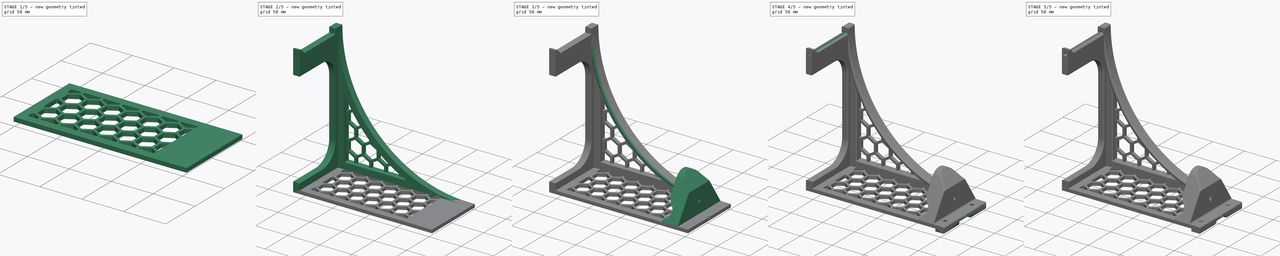
[diagram: build sequence overview — one tinted view per stage of 5, left to right]
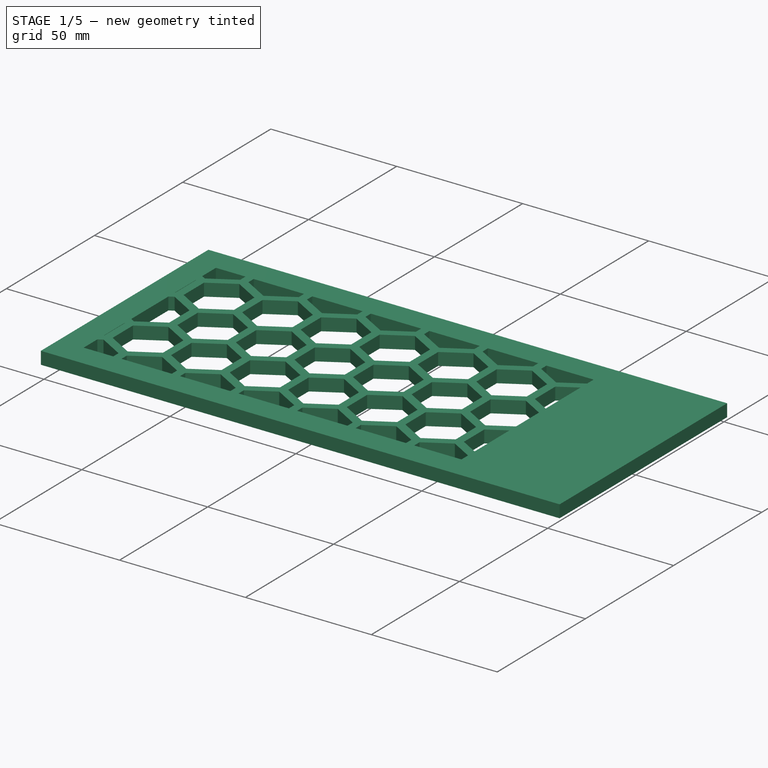
[diagram: stage 1 of 5 — iso view after this stage's code; geometry added in this stage tinted green]
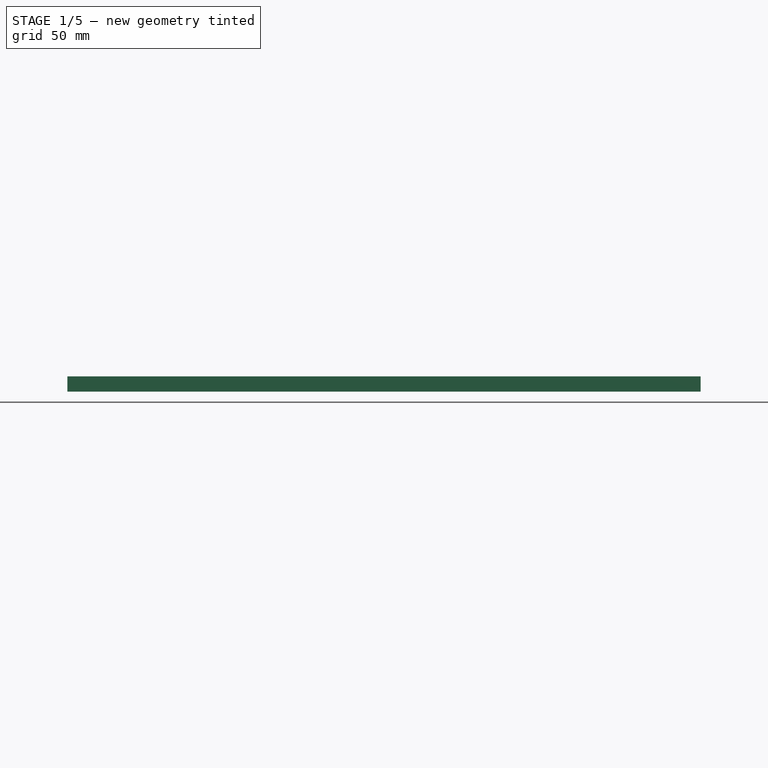
[diagram: stage 1 of 5 — front view after this stage's code; geometry added in this stage tinted green]
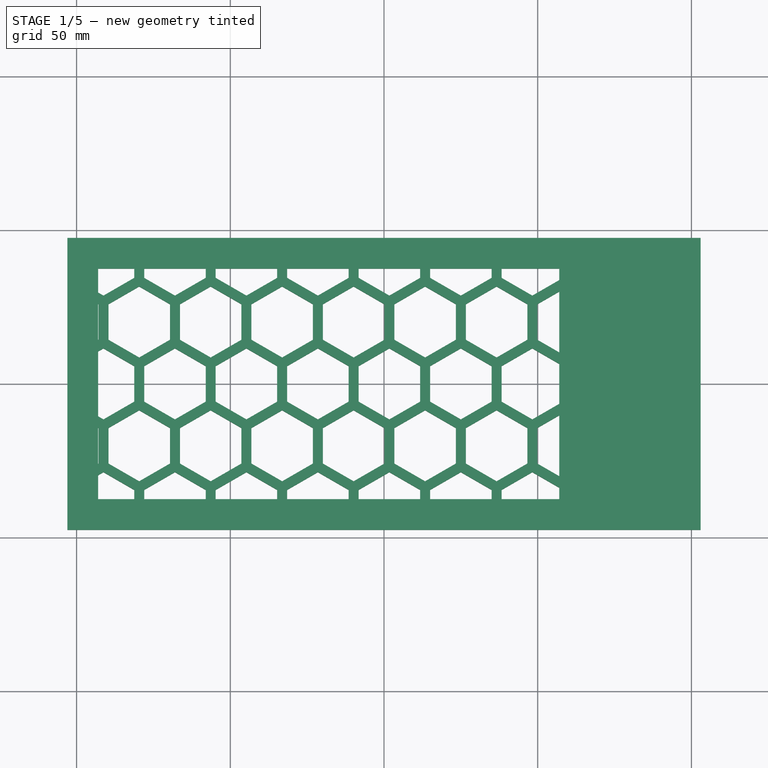
[diagram: stage 1 of 5 — top view after this stage's code; geometry added in this stage tinted green]
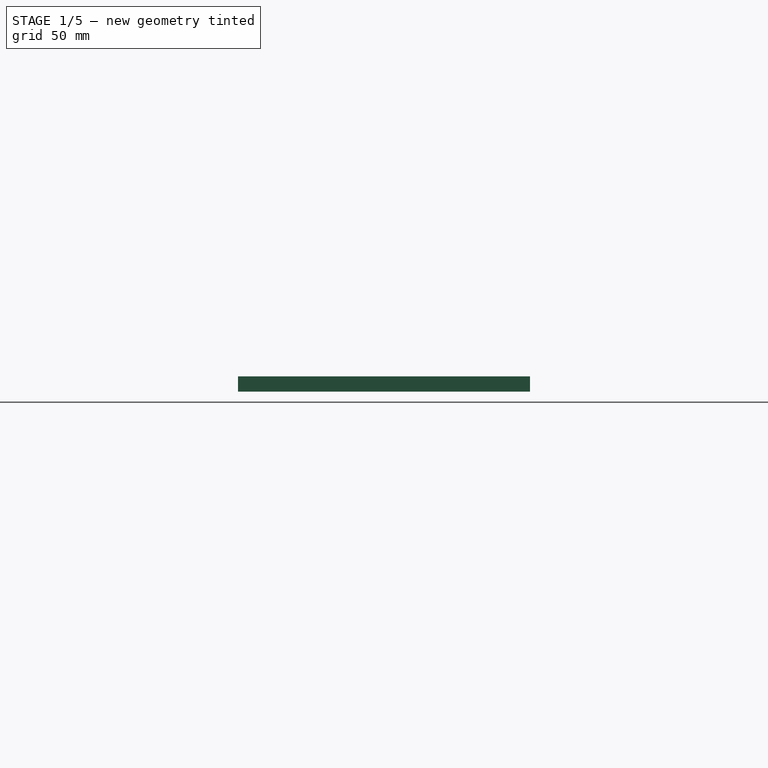
[diagram: stage 1 of 5 — right view after this stage's code; geometry added in this stage tinted green]
FCSTD DOCUMENT  (FreeCAD 1.1R38871 (Git))
Label: Fillament Spool Holder V3
License: All rights reserved
LicenseURL: https://en.wikipedia.org/wiki/All_rights_reserved
objects: Sketcher::SketchObject×18, PartDesign::Pad×7, PartDesign::Pocket×7, PartDesign::LinearPattern×2, PartDesign::Fillet×2, PartDesign::Chamfer×2, PartDesign::AdditivePipe×1, PartDesign::Plane×1, PartDesign::SubtractivePipe×1, PartDesign::Body×1
note: 102 computed .brp shape members not serialized (recipe doc carries the construction recipe); baked Part::Feature solids carry a one-line shape summary decoded from their .brp

FEATURE [Sketcher::SketchObject] Sketch  label="Sketch Base"
  ArcFitTolerance = 1e-06
  AttachmentSupport = -> [XY_Plane]
  FullyConstrained = true
  MakeInternals = false
  MapMode = 5
  sketch-geometry (4):
    g0: LineSegment StartX=-103 StartY=47.5 StartZ=0 EndX=-103 EndY=-47.5 EndZ=0
    g1: LineSegment StartX=-103 StartY=-47.5 StartZ=0 EndX=103 EndY=-47.5 EndZ=0
    g2: LineSegment StartX=103 StartY=-47.5 StartZ=0 EndX=103 EndY=47.5 EndZ=0
    g3: LineSegment StartX=103 StartY=47.5 StartZ=0 EndX=-103 EndY=47.5 EndZ=0
  constraints (11):
    c: Coincident(g0,g1)
    c: Coincident(g1,g2)
    c: Coincident(g2,g3)
    c: Coincident(g3,g0)
    c: Vertical(g0)
    c: Vertical(g2)
    c: Horizontal(g1)
    c: Horizontal(g3)
    c: Symmetric(g0,g2,g-1)
    c: DistanceX(g3,g3) = 206  'BaseLength'
    c: Distance(g2,g2) = 95  'BaseWidth'
FEATURE [PartDesign::Pad] Pad  label="Pad Base"
  Direction = (0,0,1)
  Length = 5
  Length2 = 10
  Profile = -> Sketch
  ReferenceAxis = -> Sketch [N_Axis]
  Refine = true
  Suppressed = false
  Type = 0
FEATURE [Sketcher::SketchObject] Sketch001  label="Sketch Hexes"
  ArcFitTolerance = 1e-06
  AttachmentSupport = -> [Pad]
  FullyConstrained = true
  MakeInternals = false
  MapMode = 5
  Placement = pos=(0,0,5) rot=(0,0,1;0rad)
  sketch-geometry (39):
    g0: LineSegment StartX=-104.5 StartY=34.4967 StartZ=0 EndX=-104.5 EndY=46.0437 EndZ=0
    g1: LineSegment StartX=-104.5 StartY=46.0437 StartZ=0 EndX=-114.5 EndY=51.8172 EndZ=0
    g2: LineSegment StartX=-114.5 StartY=51.8172 StartZ=0 EndX=-124.5 EndY=46.0437 EndZ=0
    g3: LineSegment StartX=-124.5 StartY=46.0437 StartZ=0 EndX=-124.5 EndY=34.4967 EndZ=0
    g4: LineSegment StartX=-124.5 StartY=34.4967 StartZ=0 EndX=-114.5 EndY=28.7232 EndZ=0
    g5: LineSegment StartX=-114.5 StartY=28.7232 StartZ=0 EndX=-104.5 EndY=34.4967 EndZ=0
    g6: Circle [constr] CenterX=-114.5 CenterY=40.2702 CenterZ=0 NormalX=0 NormalY=0 NormalZ=1 AngleXU=0 Radius=11.547
    g7: LineSegment StartX=-92.875 StartY=14.3616 StartZ=0 EndX=-92.875 EndY=25.9086 EndZ=0
    g8: LineSegment StartX=-92.875 StartY=25.9086 StartZ=0 EndX=-102.875 EndY=31.6821 EndZ=0
    g9: LineSegment StartX=-102.875 StartY=31.6821 StartZ=0 EndX=-112.875 EndY=25.9086 EndZ=0
    g10: LineSegment StartX=-112.875 StartY=25.9086 StartZ=0 EndX=-112.875 EndY=14.3616 EndZ=0
    g11: LineSegment StartX=-112.875 StartY=14.3616 StartZ=0 EndX=-102.875 EndY=8.58809 EndZ=0
    g12: LineSegment StartX=-102.875 StartY=8.58809 StartZ=0 EndX=-92.875 EndY=14.3616 EndZ=0
    g13: Circle [constr] CenterX=-102.875 CenterY=20.1351 CenterZ=0 NormalX=0 NormalY=0 NormalZ=1 AngleXU=0 Radius=11.547
    g14: LineSegment StartX=-104.5 StartY=-5.7735 StartZ=0 EndX=-104.5 EndY=5.7735 EndZ=0
    g15: LineSegment StartX=-104.5 StartY=5.7735 StartZ=0 EndX=-114.5 EndY=11.547 EndZ=0
    g16: LineSegment StartX=-114.5 StartY=11.547 StartZ=0 EndX=-124.5 EndY=5.7735 EndZ=0
    g17: LineSegment StartX=-124.5 StartY=5.7735 StartZ=0 EndX=-124.5 EndY=-5.7735 EndZ=0
    g18: LineSegment StartX=-124.5 StartY=-5.7735 StartZ=0 EndX=-114.5 EndY=-11.547 EndZ=0
    g19: LineSegment StartX=-114.5 StartY=-11.547 StartZ=0 EndX=-104.5 EndY=-5.7735 EndZ=0
    g20: Circle [constr] CenterX=-114.5 CenterY=0 CenterZ=0 NormalX=0 NormalY=0 NormalZ=1 AngleXU=0 Radius=11.547
    g21: LineSegment StartX=-102.875 StartY=-31.6821 StartZ=0 EndX=-92.875 EndY=-25.9086 EndZ=0
    g22: LineSegment StartX=-92.875 StartY=-25.9086 StartZ=0 EndX=-92.875 EndY=-14.3616 EndZ=0
    g23: LineSegment StartX=-92.875 StartY=-14.3616 StartZ=0 EndX=-102.875 EndY=-8.58809 EndZ=0
    g24: LineSegment StartX=-102.875 StartY=-8.58809 StartZ=0 EndX=-112.875 EndY=-14.3616 EndZ=0
    g25: LineSegment StartX=-112.875 StartY=-14.3616 StartZ=0 EndX=-112.875 EndY=-25.9086 EndZ=0
    g26: LineSegment StartX=-112.875 StartY=-25.9086 StartZ=0 EndX=-102.875 EndY=-31.6821 EndZ=0
    g27: Circle [constr] CenterX=-102.875 CenterY=-20.1351 CenterZ=0 NormalX=0 NormalY=0 NormalZ=1 AngleXU=0 Radius=11.547
    g28: LineSegment StartX=-114.5 StartY=-51.8172 StartZ=0 EndX=-104.5 EndY=-46.0437 EndZ=0
    g29: LineSegment StartX=-104.5 StartY=-46.0437 StartZ=0 EndX=-104.5 EndY=-34.4967 EndZ=0
    g30: LineSegment StartX=-104.5 StartY=-34.4967 StartZ=0 EndX=-114.5 EndY=-28.7232 EndZ=0
    g31: LineSegment StartX=-114.5 StartY=-28.7232 StartZ=0 EndX=-124.5 EndY=-34.4967 EndZ=0
    g32: LineSegment StartX=-124.5 StartY=-34.4967 StartZ=0 EndX=-124.5 EndY=-46.0437 EndZ=0
    g33: LineSegment StartX=-124.5 StartY=-46.0437 StartZ=0 EndX=-114.5 EndY=-51.8172 EndZ=0
    g34: Circle [constr] CenterX=-114.5 CenterY=-40.2702 CenterZ=0 NormalX=0 NormalY=0 NormalZ=1 AngleXU=0 Radius=11.547
    g35: LineSegment [constr] StartX=-104.5 StartY=34.4967 StartZ=0 EndX=-92.875 EndY=14.3616 EndZ=0
    g36: LineSegment [constr] StartX=-102.875 StartY=8.58809 StartZ=0 EndX=-114.5 EndY=-11.547 EndZ=0
    g37: LineSegment [constr] StartX=-114.5 StartY=-11.547 StartZ=0 EndX=-102.875 EndY=-31.6821 EndZ=0
    g38: LineSegment [constr] StartX=-104.5 StartY=-34.4967 StartZ=0 EndX=-92.875 EndY=-14.3616 EndZ=0
  constraints (93):
    c: Coincident(g0,g1)
    c: Coincident(g1,g2)
    c: Coincident(g2,g3)
    c: Coincident(g3,g4)
    c: Coincident(g4,g5)
    c: Coincident(g5,g0)
    c: Equal(g0, g1-g5) x5
    c: PointOnObject(g0,g6)
    c: PointOnObject(g1,g6)
    c: PointOnObject(g2,g6)
    c: PointOnObject(g3,g6)
    c: PointOnObject(g4,g6)
    c: PointOnObject(g5,g6)
    c: Vertical(g0)
    c: Distance(g0,g3) = 20
    c: Coincident(g7,g8)
    c: Coincident(g8,g9)
    c: Coincident(g9,g10)
    c: Coincident(g10,g11)
    c: Coincident(g11,g12)
    c: Coincident(g12,g7)
    c: Equal(g7, g8-g12) x5
    c: PointOnObject(g7,g13)
    c: PointOnObject(g8,g13)
    c: PointOnObject(g9,g13)
    c: PointOnObject(g10,g13)
    c: PointOnObject(g11,g13)
    c: PointOnObject(g12,g13)
    c: Coincident(g14,g15)
    c: Coincident(g15,g16)
    c: Coincident(g16,g17)
    c: Coincident(g17,g18)
    c: Coincident(g18,g19)
    c: Coincident(g19,g14)
    c: Equal(g14, g15-g19) x5
    c: PointOnObject(g14,g20)
    c: PointOnObject(g15,g20)
    c: PointOnObject(g16,g20)
    c: PointOnObject(g17,g20)
    c: PointOnObject(g18,g20)
    c: PointOnObject(g19,g20)
    c: Coincident(g21,g22)
    c: Coincident(g22,g23)
    c: Coincident(g23,g24)
    c: Coincident(g24,g25)
    c: Coincident(g25,g26)
    c: Coincident(g26,g21)
    c: Equal(g21, g22-g26) x5
    c: PointOnObject(g21,g27)
    c: PointOnObject(g22,g27)
    c: PointOnObject(g23,g27)
    c: PointOnObject(g24,g27)
    c: PointOnObject(g25,g27)
    c: PointOnObject(g26,g27)
    c: Coincident(g28,g29)
    c: Coincident(g29,g30)
    c: Coincident(g30,g31)
    c: Coincident(g31,g32)
    c: Coincident(g32,g33)
    c: Coincident(g33,g28)
    c: Equal(g28, g29-g33) x5
    c: PointOnObject(g28,g34)
    c: PointOnObject(g29,g34)
    c: PointOnObject(g30,g34)
    c: PointOnObject(g31,g34)
    c: PointOnObject(g32,g34)
    c: PointOnObject(g33,g34)
    c: Vertical(g7)
    c: Vertical(g14)
    c: Vertical(g22)
    c: Vertical(g29)
    c: Equal(g6,g13)
    c: Equal(g13,g20)
    c: Equal(g20,g27)
    c: Equal(g27,g34)
    c: Coincident(g35,g0)
    c: Coincident(g35,g7)
    c: PointOnObject(g8,g35)
    c: Coincident(g36,g11)
    c: Coincident(g36,g18)
    c: Coincident(g37,g18)
    c: Coincident(g37,g21)
    c: Coincident(g38,g29)
    c: Coincident(g38,g22)
    c: PointOnObject(g14,g36)
    c: PointOnObject(g24,g37)
    c: PointOnObject(g21,g38)
    c: Distance(g9,g5) = 3.25
    c: Distance(g11,g15) = 3.25
    c: Distance(g24,g19) = 3.25
    c: Distance(g26,g30) = 3.25
    c: PointOnObject(g20,g-1)
    c: Distance(g1,g-2) = 114.5
FEATURE [PartDesign::Pocket] Pocket  label="Pocket Base Hexes"
  BaseFeature = -> Pad
  Direction = (0,0,-1)
  Length = 5
  Length2 = 5
  Profile = -> Sketch001
  ReferenceAxis = -> Sketch001 [N_Axis]
  Refine = true
  Suppressed = false
  Type = 0
FEATURE [PartDesign::LinearPattern] LinearPattern
  BaseFeature = -> Pocket
  Direction = -> Sketch001 [H_Axis]
  Length = 209.25
  Mode = 1
  Occurrences = 10
  Offset = 23.25
  Originals = -> [Pocket]
  Refine = true
  Suppressed = false
  TransformMode = 0
FEATURE [Sketcher::SketchObject] Sketch002  label="Sketch Base Frame"
  ArcFitTolerance = 1e-06
  AttachmentSupport = -> [XY_Plane]
  FullyConstrained = true
  MakeInternals = false
  MapMode = 5
  expr: Constraints[20] = .Constraints.BorderWidth
  expr: Constraints[8] = Sketch.Constraints.BaseWidth
  expr: Constraints[9] = Sketch.Constraints.BaseLength
  sketch-geometry (8):
    g0: LineSegment StartX=-103 StartY=47.5 StartZ=0 EndX=-103 EndY=-47.5 EndZ=0
    g1: LineSegment StartX=-103 StartY=-47.5 StartZ=0 EndX=103 EndY=-47.5 EndZ=0
    g2: LineSegment StartX=103 StartY=-47.5 StartZ=0 EndX=103 EndY=47.5 EndZ=0
    g3: LineSegment StartX=103 StartY=47.5 StartZ=0 EndX=-103 EndY=47.5 EndZ=0
    g4: LineSegment StartX=-93 StartY=37.5 StartZ=0 EndX=-93 EndY=-37.5 EndZ=0
    g5: LineSegment StartX=-93 StartY=-37.5 StartZ=0 EndX=57 EndY=-37.5 EndZ=0
    g6: LineSegment StartX=57 StartY=-37.5 StartZ=0 EndX=57 EndY=37.5 EndZ=0
    g7: LineSegment StartX=57 StartY=37.5 StartZ=0 EndX=-93 EndY=37.5 EndZ=0
  constraints (22):
    c: Coincident(g0,g1)
    c: Coincident(g1,g2)
    c: Coincident(g2,g3)
    c: Coincident(g3,g0)
    c: Vertical(g0)
    c: Vertical(g2)
    c: Horizontal(g1)
    c: Horizontal(g3)
    c: Distance(g2,g2) = 95
    c: DistanceX(g1,g1) = 206
    c: Symmetric(g0,g1,g-1)
    c: Coincident(g4,g5)
    c: Coincident(g5,g6)
    c: Coincident(g6,g7)
    c: Coincident(g7,g4)
    c: Vertical(g6)
    c: Horizontal(g5)
    c: Horizontal(g7)
    c: Distance(g4,g0) = 10  'BorderWidth'
    c: Symmetric(g4,g4,g-1)
    c: Distance(g4,g1) = 10
    c: Distance(g2,g6) = 46
FEATURE [PartDesign::Pad] Pad001  label="Pad Base Frame"
  BaseFeature = -> LinearPattern
  Direction = (0,0,1)
  Length = 5
  Length2 = 10
  Profile = -> Sketch002
  ReferenceAxis = -> Sketch002 [N_Axis]
  Refine = true
  Suppressed = false
  Type = 0
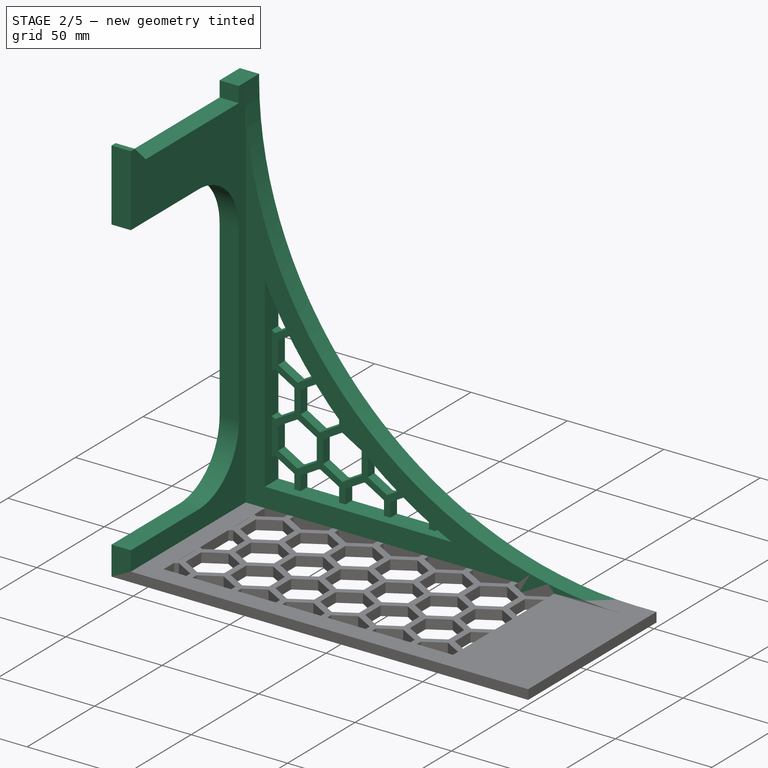
[diagram: stage 2 of 5 — iso view after this stage's code; geometry added in this stage tinted green]
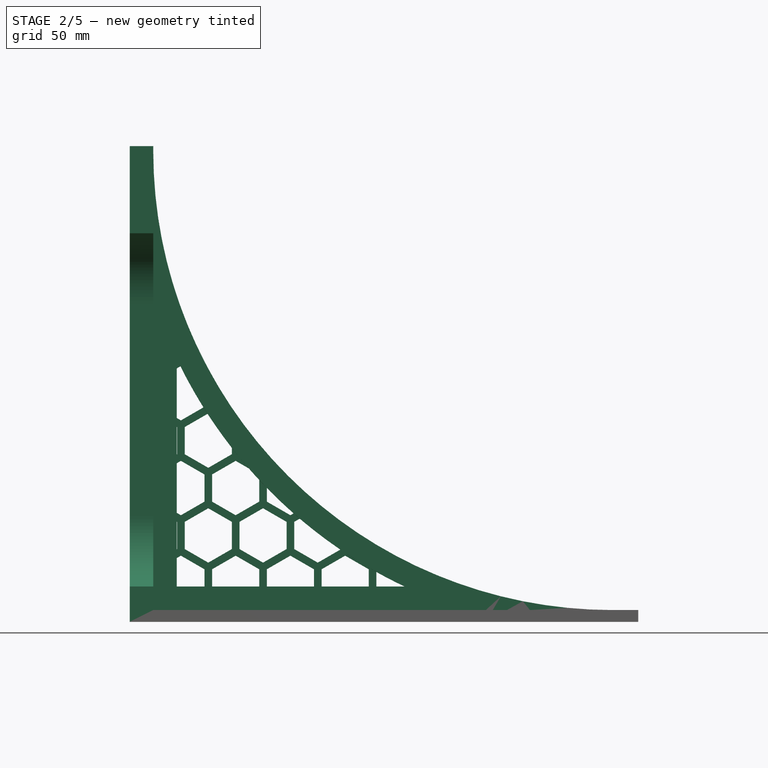
[diagram: stage 2 of 5 — front view after this stage's code; geometry added in this stage tinted green]
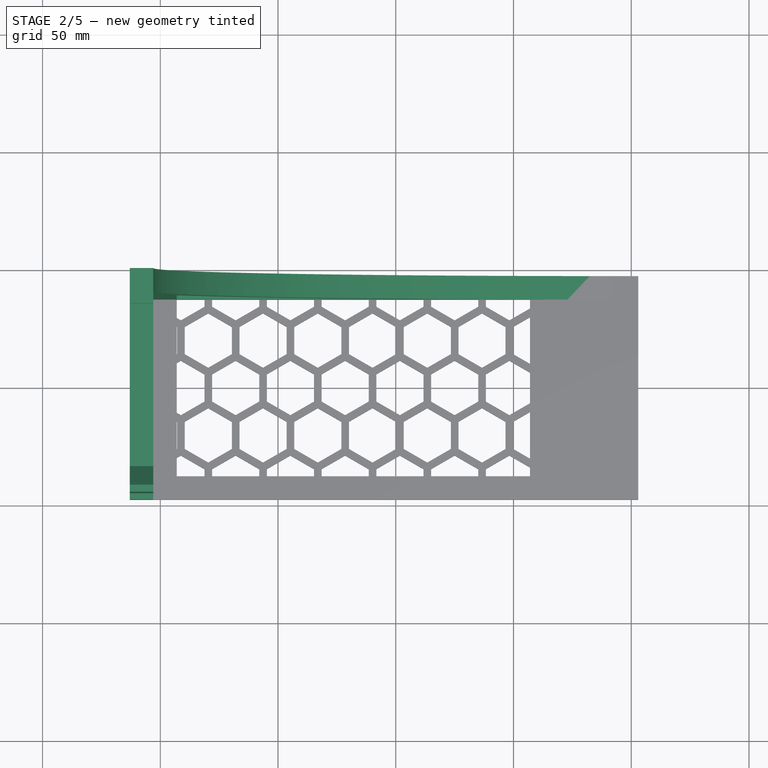
[diagram: stage 2 of 5 — top view after this stage's code; geometry added in this stage tinted green]
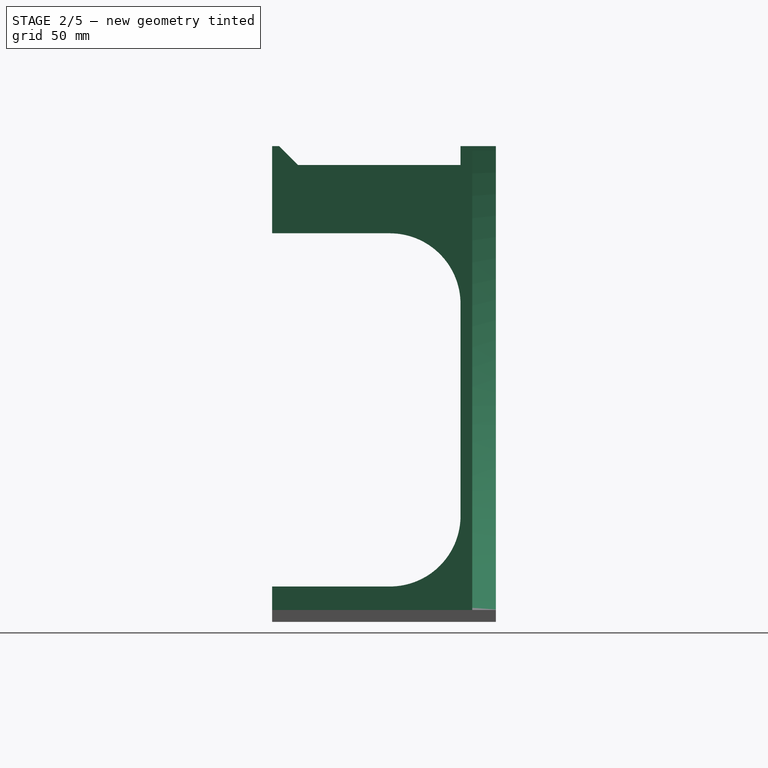
[diagram: stage 2 of 5 — right view after this stage's code; geometry added in this stage tinted green]
FEATURE [Sketcher::SketchObject] Sketch003  label="Sketch Spool Arm"
  ArcFitTolerance = 1e-06
  AttachmentSupport = -> [Pad001]
  FullyConstrained = true
  MakeInternals = false
  MapMode = 5
  Placement = pos=(-103,0,0) rot=(0.57735,-0.57735,-0.57735;2.0944rad)
  expr: .Placement.Base.x = -Sketch.Constraints.BaseLength / 2
  expr: Constraints[26] = Sketch.Constraints.BaseWidth
  expr: Constraints[33] = .Constraints.RibWidth
  sketch-geometry (14):
    g0: LineSegment StartX=-47.5 StartY=0 StartZ=0 EndX=47.5 EndY=0 EndZ=0
    g1: LineSegment StartX=47.5 StartY=0 StartZ=0 EndX=47.5 EndY=15 EndZ=0
    g2: LineSegment StartX=47.5 StartY=15 StartZ=0 EndX=-2.5 EndY=15 EndZ=0
    g3: ArcOfCircle CenterX=-2.5 CenterY=45 CenterZ=0 NormalX=0 NormalY=0 NormalZ=1 AngleXU=0 Radius=30 StartAngle=3.14159 EndAngle=4.71239
    g4: LineSegment StartX=-32.5 StartY=45 StartZ=0 EndX=-32.5 EndY=135 EndZ=0
    g5: ArcOfCircle CenterX=-2.5 CenterY=135 CenterZ=0 NormalX=0 NormalY=0 NormalZ=1 AngleXU=0 Radius=30 StartAngle=1.5708 EndAngle=3.14159
    g6: LineSegment StartX=-2.5 StartY=165 StartZ=0 EndX=47.5 EndY=165 EndZ=0
    g7: LineSegment StartX=47.5 StartY=165 StartZ=0 EndX=47.5 EndY=202 EndZ=0
    g8: LineSegment StartX=47.5 StartY=202 StartZ=0 EndX=44.5 EndY=202 EndZ=0
    g9: LineSegment StartX=44.5 StartY=202 StartZ=0 EndX=36.5 EndY=194 EndZ=0
    g10: LineSegment StartX=36.5 StartY=194 StartZ=0 EndX=-32.5 EndY=194 EndZ=0
    g11: LineSegment StartX=-32.5 StartY=194 StartZ=0 EndX=-32.5 EndY=202 EndZ=0
    g12: LineSegment StartX=-32.5 StartY=202 StartZ=0 EndX=-47.5 EndY=202 EndZ=0
    g13: LineSegment StartX=-47.5 StartY=202 StartZ=0 EndX=-47.5 EndY=0 EndZ=0
  constraints (39):
    c: PointOnObject(g0,g-1)
    c: Coincident(g0,g1)
    c: Vertical(g1)
    c: Coincident(g1,g2)
    c: Horizontal(g2)
    c: Tangent(g2,g3) = 1.5708
    c: Tangent(g3,g4) = 1.5708
    c: Tangent(g4,g5) = 1.5708
    c: Tangent(g5,g6) = 1.5708
    c: Coincident(g6,g7)
    c: Vertical(g7)
    c: Coincident(g7,g8)
    c: Coincident(g8,g9)
    c: Coincident(g9,g10)
    c: Horizontal(g10)
    c: Coincident(g10,g11)
    c: Vertical(g11)
    c: Coincident(g11,g12)
    c: Horizontal(g12)
    c: Coincident(g12,g13)
    c: Coincident(g13,g0)
    c: Vertical(g13)
    c: Radius(g3) = 30
    c: Vertical(g4)
    c: Horizontal(g6)
    c: Symmetric(g0,g0,g-2)
    c: DistanceX(g0,g0) = 95
    c: Vertical(g1,g6)
    c: Angle(g9,g10) = 2.35619
    c: Horizontal(g8)
    c: Horizontal(g11,g8)
    c: Vertical(g10,g4)
    c: Distance(g1,g1) = 15  'RibWidth'
    c: Distance(g12,g12) = 15
    c: Equal(g3,g5)
    c: DistanceY(g7,g7) = 37
    c: DistanceY(g1,g6) = 150
    c: Distance(g8,g8) = 3
    c: Distance(g11,g11) = 8
FEATURE [Sketcher::SketchObject] Sketch004  label="Sketch Back Brace"
  ArcFitTolerance = 1e-06
  AttachmentOffset = pos=(0,0,-47.5) rot=(0,0,1;0rad)
  AttachmentSupport = -> [XZ_Plane]
  FullyConstrained = true
  MakeInternals = false
  MapMode = 5
  Placement = pos=(0,47.5,-1.05e-14) rot=(1,0,0;1.5708rad)
  expr: .AttachmentOffset.Base.z = -Sketch.Constraints.BaseWidth / 2
  expr: Constraints[8] = Sketch.Constraints.BaseLength / 2
  sketch-geometry (3):
    g0: ArcOfCircle CenterX=92 CenterY=200 CenterZ=0 NormalX=0 NormalY=0 NormalZ=1 AngleXU=0 Radius=195 StartAngle=3.14159 EndAngle=4.71239
    g1: LineSegment StartX=-103 StartY=5 StartZ=0 EndX=91.9999 EndY=5 EndZ=0
    g2: LineSegment StartX=-103 StartY=5 StartZ=0 EndX=-103 EndY=200 EndZ=0
  constraints (10):
    c: Radius(g0) = 195
    c: Angle(g0) = 1.5708
    c: Horizontal(g0,g0)
    c: Horizontal(g1)
    c: Coincident(g2,g1)
    c: Vertical(g2)
    c: Coincident(g2,g0)
    c: Coincident(g1,g0)
    c: Distance(g0,g-2) = 103
    c: Distance(g1,g-1) = 5
FEATURE [PartDesign::Pad] Pad003  label="Pad Back Brace"
  BaseFeature = -> Pad001
  Direction = (0,-1,2e-16)
  Length = 5
  Length2 = 10
  Profile = -> Sketch004
  ReferenceAxis = -> Sketch004 [N_Axis]
  Refine = true
  Suppressed = false
  Type = 0
FEATURE [Sketcher::SketchObject] Sketch005  label="Sketch Hexes Back"
  ArcFitTolerance = 1e-06
  AttachmentOffset = pos=(0,0,-47.5) rot=(0,0,1;0rad)
  AttachmentSupport = -> [XZ_Plane]
  FullyConstrained = true
  MakeInternals = false
  MapMode = 5
  Placement = pos=(0,47.5,-1.05e-14) rot=(1,0,0;1.5708rad)
  expr: .AttachmentOffset.Base.z = -Sketch.Constraints.BaseWidth / 2
  sketch-geometry (39):
    g0: LineSegment StartX=-104.5 StartY=91.3139 StartZ=0 EndX=-104.5 EndY=102.861 EndZ=0
    g1: LineSegment StartX=-104.5 StartY=102.861 StartZ=0 EndX=-114.5 EndY=108.634 EndZ=0
    g2: LineSegment StartX=-114.5 StartY=108.634 StartZ=0 EndX=-124.5 EndY=102.861 EndZ=0
    g3: LineSegment StartX=-124.5 StartY=102.861 StartZ=0 EndX=-124.5 EndY=91.3139 EndZ=0
    g4: LineSegment StartX=-124.5 StartY=91.3139 StartZ=0 EndX=-114.5 EndY=85.5404 EndZ=0
    g5: LineSegment StartX=-114.5 StartY=85.5404 StartZ=0 EndX=-104.5 EndY=91.3139 EndZ=0
    g6: Circle [constr] CenterX=-114.5 CenterY=97.0874 CenterZ=0 NormalX=0 NormalY=0 NormalZ=1 AngleXU=0 Radius=11.547
    g7: LineSegment StartX=-92.875 StartY=71.1788 StartZ=0 EndX=-92.875 EndY=82.7258 EndZ=0
    g8: LineSegment StartX=-92.875 StartY=82.7258 StartZ=0 EndX=-102.875 EndY=88.4993 EndZ=0
    g9: LineSegment StartX=-102.875 StartY=88.4993 StartZ=0 EndX=-112.875 EndY=82.7258 EndZ=0
    g10: LineSegment StartX=-112.875 StartY=82.7258 StartZ=0 EndX=-112.875 EndY=71.1788 EndZ=0
    g11: LineSegment StartX=-112.875 StartY=71.1788 StartZ=0 EndX=-102.875 EndY=65.4053 EndZ=0
    g12: LineSegment StartX=-102.875 StartY=65.4053 StartZ=0 EndX=-92.875 EndY=71.1788 EndZ=0
    g13: Circle [constr] CenterX=-102.875 CenterY=76.9523 CenterZ=0 NormalX=0 NormalY=0 NormalZ=1 AngleXU=0 Radius=11.547
    g14: LineSegment StartX=-104.5 StartY=51.0437 StartZ=0 EndX=-104.5 EndY=62.5907 EndZ=0
    g15: LineSegment StartX=-104.5 StartY=62.5907 StartZ=0 EndX=-114.5 EndY=68.3642 EndZ=0
    g16: LineSegment StartX=-114.5 StartY=68.3642 StartZ=0 EndX=-124.5 EndY=62.5907 EndZ=0
    g17: LineSegment StartX=-124.5 StartY=62.5907 StartZ=0 EndX=-124.5 EndY=51.0437 EndZ=0
    g18: LineSegment StartX=-124.5 StartY=51.0437 StartZ=0 EndX=-114.5 EndY=45.2702 EndZ=0
    g19: LineSegment StartX=-114.5 StartY=45.2702 StartZ=0 EndX=-104.5 EndY=51.0437 EndZ=0
    g20: Circle [constr] CenterX=-114.5 CenterY=56.8172 CenterZ=0 NormalX=0 NormalY=0 NormalZ=1 AngleXU=0 Radius=11.547
    g21: LineSegment StartX=-102.875 StartY=25.1351 StartZ=0 EndX=-92.875 EndY=30.9086 EndZ=0
    g22: LineSegment StartX=-92.875 StartY=30.9086 StartZ=0 EndX=-92.875 EndY=42.4556 EndZ=0
    g23: LineSegment StartX=-92.875 StartY=42.4556 StartZ=0 EndX=-102.875 EndY=48.2291 EndZ=0
    g24: LineSegment StartX=-102.875 StartY=48.2291 StartZ=0 EndX=-112.875 EndY=42.4556 EndZ=0
    g25: LineSegment StartX=-112.875 StartY=42.4556 StartZ=0 EndX=-112.875 EndY=30.9086 EndZ=0
    g26: LineSegment StartX=-112.875 StartY=30.9086 StartZ=0 EndX=-102.875 EndY=25.1351 EndZ=0
    g27: Circle [constr] CenterX=-102.875 CenterY=36.6821 CenterZ=0 NormalX=0 NormalY=0 NormalZ=1 AngleXU=0 Radius=11.547
    g28: LineSegment StartX=-114.5 StartY=5 StartZ=0 EndX=-104.5 EndY=10.7735 EndZ=0
    g29: LineSegment StartX=-104.5 StartY=10.7735 StartZ=0 EndX=-104.5 EndY=22.3205 EndZ=0
    g30: LineSegment StartX=-104.5 StartY=22.3205 StartZ=0 EndX=-114.5 EndY=28.094 EndZ=0
    g31: LineSegment StartX=-114.5 StartY=28.094 StartZ=0 EndX=-124.5 EndY=22.3205 EndZ=0
    g32: LineSegment StartX=-124.5 StartY=22.3205 StartZ=0 EndX=-124.5 EndY=10.7735 EndZ=0
    g33: LineSegment StartX=-124.5 StartY=10.7735 StartZ=0 EndX=-114.5 EndY=5 EndZ=0
    g34: Circle [constr] CenterX=-114.5 CenterY=16.547 CenterZ=0 NormalX=0 NormalY=0 NormalZ=1 AngleXU=0 Radius=11.547
    g35: LineSegment [constr] StartX=-104.5 StartY=91.3139 StartZ=0 EndX=-92.875 EndY=71.1788 EndZ=0
    g36: LineSegment [constr] StartX=-102.875 StartY=65.4053 StartZ=0 EndX=-114.5 EndY=45.2702 EndZ=0
    g37: LineSegment [constr] StartX=-114.5 StartY=45.2702 StartZ=0 EndX=-102.875 EndY=25.1351 EndZ=0
    g38: LineSegment [constr] StartX=-104.5 StartY=22.3205 StartZ=0 EndX=-92.875 EndY=42.4556 EndZ=0
  constraints (93):
    c: Coincident(g0,g1)
    c: Coincident(g1,g2)
    c: Coincident(g2,g3)
    c: Coincident(g3,g4)
    c: Coincident(g4,g5)
    c: Coincident(g5,g0)
    c: Equal(g0, g1-g5) x5
    c: PointOnObject(g0,g6)
    c: PointOnObject(g1,g6)
    c: PointOnObject(g2,g6)
    c: PointOnObject(g3,g6)
    c: PointOnObject(g4,g6)
    c: PointOnObject(g5,g6)
    c: Vertical(g0)
    c: Distance(g0,g3) = 20
    c: Coincident(g7,g8)
    c: Coincident(g8,g9)
    c: Coincident(g9,g10)
    c: Coincident(g10,g11)
    c: Coincident(g11,g12)
    c: Coincident(g12,g7)
    c: Equal(g7, g8-g12) x5
    c: PointOnObject(g7,g13)
    c: PointOnObject(g8,g13)
    c: PointOnObject(g9,g13)
    c: PointOnObject(g10,g13)
    c: PointOnObject(g11,g13)
    c: PointOnObject(g12,g13)
    c: Coincident(g14,g15)
    c: Coincident(g15,g16)
    c: Coincident(g16,g17)
    c: Coincident(g17,g18)
    c: Coincident(g18,g19)
    c: Coincident(g19,g14)
    c: Equal(g14, g15-g19) x5
    c: PointOnObject(g14,g20)
    c: PointOnObject(g15,g20)
    c: PointOnObject(g16,g20)
    c: PointOnObject(g17,g20)
    c: PointOnObject(g18,g20)
    c: PointOnObject(g19,g20)
    c: Coincident(g21,g22)
    c: Coincident(g22,g23)
    c: Coincident(g23,g24)
    c: Coincident(g24,g25)
    c: Coincident(g25,g26)
    c: Coincident(g26,g21)
    c: Equal(g21, g22-g26) x5
    c: PointOnObject(g21,g27)
    c: PointOnObject(g22,g27)
    c: PointOnObject(g23,g27)
    c: PointOnObject(g24,g27)
    c: PointOnObject(g25,g27)
    c: PointOnObject(g26,g27)
    c: Coincident(g28,g29)
    c: Coincident(g29,g30)
    c: Coincident(g30,g31)
    c: Coincident(g31,g32)
    c: Coincident(g32,g33)
    c: Coincident(g33,g28)
    c: Equal(g28, g29-g33) x5
    c: PointOnObject(g28,g34)
    c: PointOnObject(g29,g34)
    c: PointOnObject(g30,g34)
    c: PointOnObject(g31,g34)
    c: PointOnObject(g32,g34)
    c: PointOnObject(g33,g34)
    c: Vertical(g7)
    c: Vertical(g14)
    c: Vertical(g22)
    c: Vertical(g29)
    c: Equal(g6,g13)
    c: Equal(g13,g20)
    c: Equal(g20,g27)
    c: Equal(g27,g34)
    c: Coincident(g35,g0)
    c: Coincident(g35,g7)
    c: PointOnObject(g8,g35)
    c: Coincident(g36,g11)
    c: Coincident(g36,g18)
    c: Coincident(g37,g18)
    c: Coincident(g37,g21)
    c: Coincident(g38,g29)
    c: Coincident(g38,g22)
    c: PointOnObject(g14,g36)
    c: PointOnObject(g24,g37)
    c: PointOnObject(g21,g38)
    c: Distance(g9,g5) = 3.25
    c: Distance(g11,g15) = 3.25
    c: Distance(g24,g19) = 3.25
    c: Distance(g26,g30) = 3.25
    c: Distance(g1,g-2) = 114.5
    c: Distance(g28,g-1) = 5
FEATURE [PartDesign::Pocket] Pocket001
  BaseFeature = -> Pad003
  Direction = (0,1,-2e-16)
  Length = 5
  Length2 = 5
  Profile = -> Sketch005
  ReferenceAxis = -> Sketch005 [N_Axis]
  Refine = true
  Reversed = true
  Suppressed = false
  Type = 0
FEATURE [PartDesign::LinearPattern] LinearPattern001
  BaseFeature = -> Pocket001
  Direction = -> Sketch005 [H_Axis]
  Length = 139.5
  Mode = 1
  Occurrences = 7
  Offset = 23.25
  Originals = -> [Pocket001]
  Refine = true
  Suppressed = false
  TransformMode = 0
FEATURE [Sketcher::SketchObject] Sketch006  label="Sketch Back Brace Frame"
  ArcFitTolerance = 1e-06
  AttachmentOffset = pos=(-103,0,-47.5) rot=(0,0,1;0rad)
  AttachmentSupport = -> [XZ_Plane]
  FullyConstrained = true
  MakeInternals = false
  MapMode = 5
  Placement = pos=(-103,47.5,-1.05e-14) rot=(1,0,0;1.5708rad)
  expr: .AttachmentOffset.Base.x = -Sketch.Constraints.BaseLength / 2
  expr: .AttachmentOffset.Base.z = -Sketch.Constraints.BaseWidth / 2
  sketch-geometry (6):
    g0: ArcOfCircle CenterX=195 CenterY=200 CenterZ=0 NormalX=0 NormalY=0 NormalZ=1 AngleXU=0 Radius=195 StartAngle=3.14159 EndAngle=4.71239
    g1: LineSegment StartX=0 StartY=5 StartZ=0 EndX=195 EndY=5 EndZ=0
    g2: LineSegment StartX=0 StartY=5 StartZ=0 EndX=0 EndY=200 EndZ=0
    g3: ArcOfCircle CenterX=195 CenterY=200 CenterZ=0 NormalX=0 NormalY=0 NormalZ=1 AngleXU=0 Radius=205 StartAngle=3.58699 EndAngle=4.26699
    g4: LineSegment StartX=10 StartY=111.682 StartZ=0 EndX=10 EndY=15 EndZ=0
    g5: LineSegment StartX=10 StartY=15 StartZ=0 EndX=106.682 EndY=15 EndZ=0
  constraints (19):
    c: Radius(g0) = 195
    c: Angle(g0) = 1.5708
    c: Horizontal(g0,g0)
    c: Horizontal(g1)
    c: Distance(g1,g-1) = 5
    c: PointOnObject(g1,g-2)
    c: Coincident(g2,g1)
    c: PointOnObject(g2,g-2)
    c: Coincident(g0,g2)
    c: Coincident(g1,g0)
    c: Coincident(g3,g0)
    c: Radius(g3) = 205
    c: Vertical(g4)
    c: Coincident(g5,g4)
    c: Horizontal(g5)
    c: Distance(g4,g1) = 10
    c: Distance(g4,g2) = 10
    c: Coincident(g5,g3)
    c: Coincident(g3,g4)
FEATURE [PartDesign::Pad] Pad004  label="Pad Back Brace Frame"
  BaseFeature = -> LinearPattern001
  Direction = (0,-1,2e-16)
  Length = 10
  Length2 = 10
  Profile = -> Sketch006
  ReferenceAxis = -> Sketch006 [N_Axis]
  Refine = true
  Suppressed = false
  Type = 0
FEATURE [PartDesign::Pad] Pad002  label="Pad Spool Arm"
  BaseFeature = -> Pad004
  Direction = (-1,0,0)
  Length = 10
  Length2 = 10
  Profile = -> Sketch003
  ReferenceAxis = -> Sketch003 [N_Axis]
  Refine = true
  Suppressed = false
  Type = 0
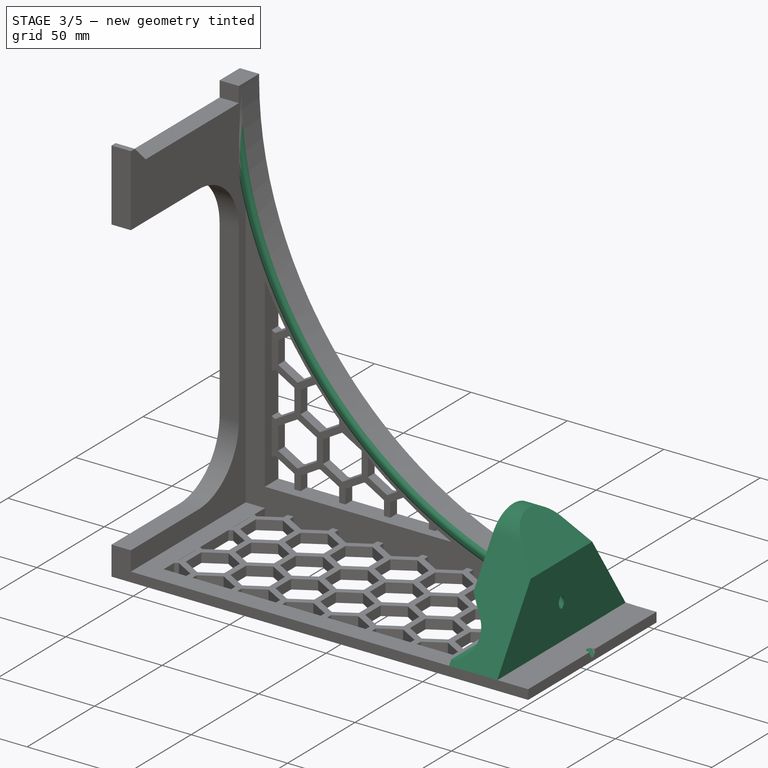
[diagram: stage 3 of 5 — iso view after this stage's code; geometry added in this stage tinted green]
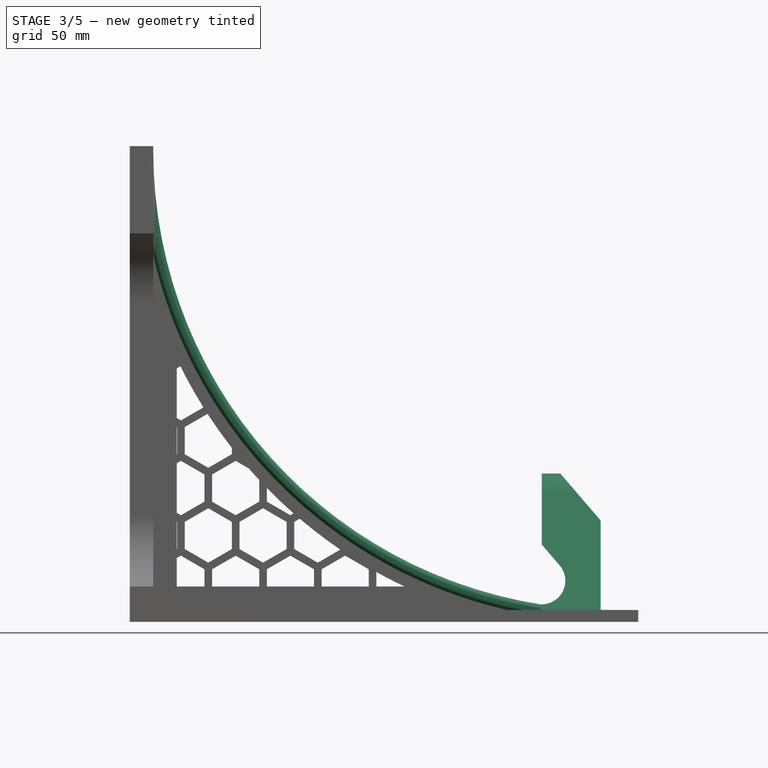
[diagram: stage 3 of 5 — front view after this stage's code; geometry added in this stage tinted green]
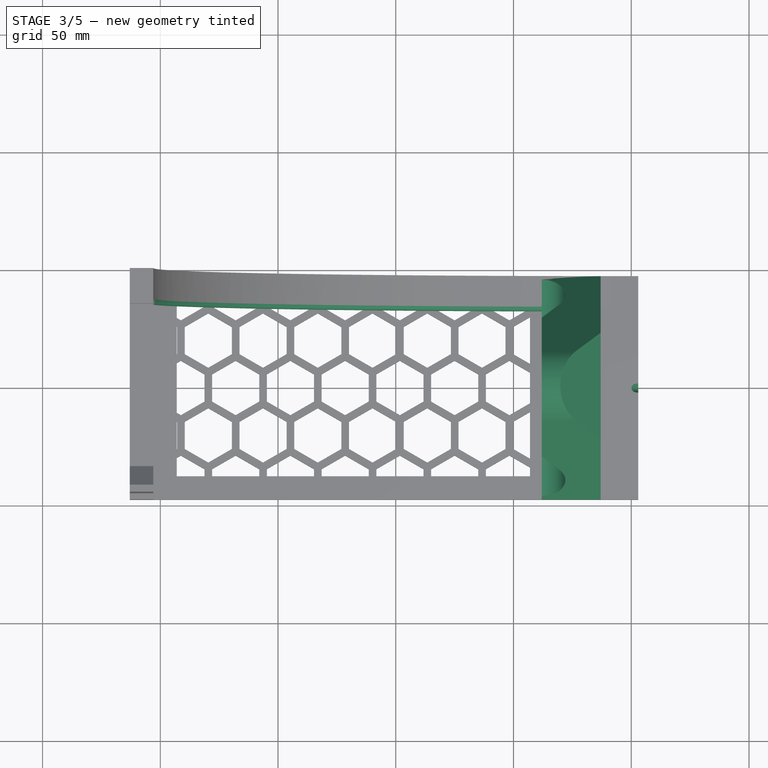
[diagram: stage 3 of 5 — top view after this stage's code; geometry added in this stage tinted green]
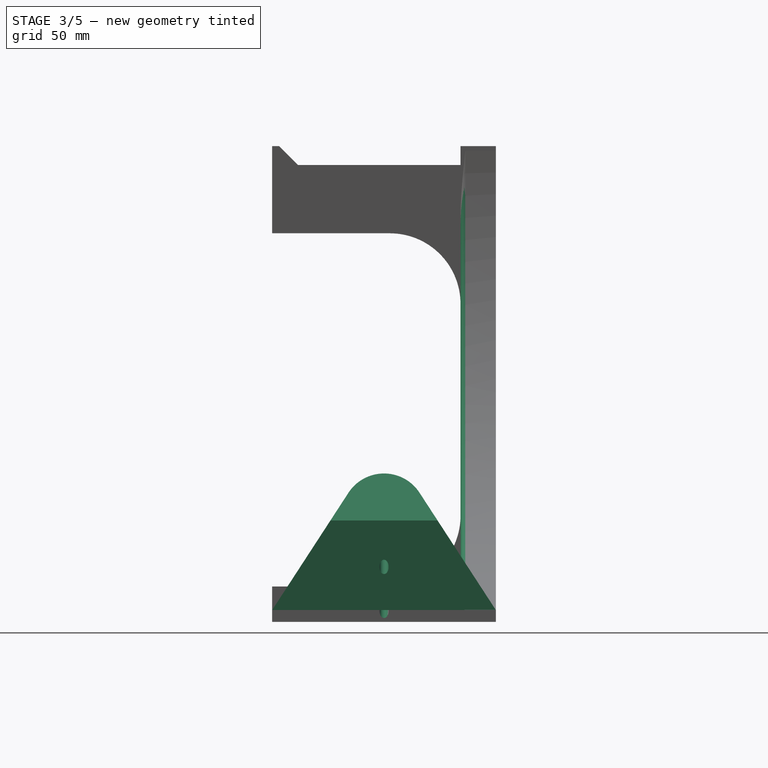
[diagram: stage 3 of 5 — right view after this stage's code; geometry added in this stage tinted green]
FEATURE [Sketcher::SketchObject] Sketch007  label="Sketch Back Brace Lip Path"
  ArcFitTolerance = 1e-06
  AttachmentOffset = pos=(0,0,-47.5) rot=(0,0,1;0rad)
  AttachmentSupport = -> [XZ_Plane]
  FullyConstrained = true
  MakeInternals = false
  MapMode = 5
  Placement = pos=(0,47.5,-1.05e-14) rot=(1,0,0;1.5708rad)
  expr: .AttachmentOffset.Base.z = -Sketch.Constraints.BaseWidth / 2
  expr: Constraints[4] = Sketch.Constraints.BaseLength / 2
  sketch-geometry (1):
    g0: ArcOfCircle CenterX=92 CenterY=200 CenterZ=0 NormalX=0 NormalY=0 NormalZ=1 AngleXU=0 Radius=195 StartAngle=3.14159 EndAngle=4.71239
  constraints (5):
    c: Radius(g0) = 195
    c: Angle(g0) = 1.5708
    c: Horizontal(g0,g0)
    c: Distance(g0,g-1) = 5
    c: Distance(g0,g-2) = 103
FEATURE [Sketcher::SketchObject] Sketch008  label="Sketch Lip"
  ArcFitTolerance = 1e-06
  AttachmentSupport = -> [Sketch007]
  FullyConstrained = true
  MakeInternals = false
  MapMode = 1
  Placement = pos=(91.9999,47.5,5) rot=(0.57735,0.57735,0.57735;2.0944rad)
  sketch-geometry (8):
    g0: LineSegment StartX=0 StartY=0 StartZ=0 EndX=-13 EndY=0 EndZ=0
    g1: LineSegment StartX=-15 StartY=-2 StartZ=0 EndX=-15 EndY=-3 EndZ=0
    g2: LineSegment StartX=-13 StartY=-5 StartZ=0 EndX=0 EndY=-5 EndZ=0
    g3: LineSegment StartX=0 StartY=-5 StartZ=0 EndX=0 EndY=0 EndZ=0
    g4: ArcOfCircle CenterX=-13 CenterY=-2 CenterZ=0 NormalX=0 NormalY=0 NormalZ=1 AngleXU=0 Radius=2 StartAngle=1.5708 EndAngle=3.14159
    g5: GeomPoint [constr] X=-15 Y=0 Z=0
    g6: ArcOfCircle CenterX=-13 CenterY=-3 CenterZ=0 NormalX=0 NormalY=0 NormalZ=1 AngleXU=0 Radius=2 StartAngle=3.14159 EndAngle=4.71239
    g7: GeomPoint [constr] X=-15 Y=-5 Z=0
  constraints (19):
    c: Coincident(g2,g3)
    c: Coincident(g3,g0)
    c: Horizontal(g0)
    c: Horizontal(g2)
    c: Vertical(g1)
    c: Vertical(g3)
    c: Distance(g5,g3) = 15
    c: Distance(g0,g2) = 5
    c: Coincident(g0,g-1)
    c: PointOnObject(g5,g1)
    c: PointOnObject(g5,g0)
    c: Tangent(g1,g4) = -1.5708
    c: Tangent(g0,g4) = -1.5708
    c: PointOnObject(g7,g1)
    c: PointOnObject(g7,g2)
    c: Tangent(g1,g6) = -1.5708
    c: Tangent(g2,g6) = -1.5708
    c: Equal(g6,g4)
    c: Radius(g6) = 2
FEATURE [PartDesign::AdditivePipe] AdditivePipe  label="AdditivePipe Back Brace Lip"
  AuxilleryCurvelinear = true
  AuxillerySpineTangent = false
  BaseFeature = -> Pad002
  Binormal = (0,0,0)
  Mode = 0
  Profile = -> Sketch008
  Refine = true
  Spine = -> Sketch007
  SpineTangent = false
  Suppressed = false
  Transformation = 0
  Transition = 0
FEATURE [Sketcher::SketchObject] Sketch009  label="Sketch filament Guide Block"
  ArcFitTolerance = 1e-06
  AttachmentOffset = pos=(0,0,87) rot=(0,0,1;0rad)
  AttachmentSupport = -> [YZ_Plane]
  FullyConstrained = true
  MakeInternals = false
  MapMode = 5
  Placement = pos=(87,0,0) rot=(0.57735,0.57735,0.57735;2.0944rad)
  expr: .AttachmentOffset.Base.z = Sketch.Constraints.BaseLength / 2 - 16 mm
  expr: Constraints[4] = Sketch.Constraints.BaseWidth
  sketch-geometry (4):
    g0: ArcOfCircle CenterX=0 CenterY=45 CenterZ=0 NormalX=0 NormalY=0 NormalZ=1 AngleXU=0 Radius=18 StartAngle=0.576822 EndAngle=2.56477
    g1: LineSegment StartX=-47.5 StartY=5 StartZ=0 EndX=47.5 EndY=5 EndZ=0
    g2: LineSegment StartX=-47.5 StartY=5 StartZ=0 EndX=-15.0876 EndY=54.8165 EndZ=0
    g3: LineSegment StartX=47.5 StartY=5 StartZ=0 EndX=15.0876 EndY=54.8165 EndZ=0
  constraints (10):
    c: Diameter(g0) = 36
    c: PointOnObject(g0,g-2)
    c: Distance(g-1,g1) = 5
    c: Symmetric(g1,g1,g-2)
    c: DistanceX(g1,g1) = 95
    c: Coincident(g2,g1)
    c: Coincident(g3,g1)
    c: Distance(g0,g1) = 40
    c: Tangent(g0,g2) = 1.5708
    c: Tangent(g0,g3) = -1.5708
FEATURE [PartDesign::Pad] Pad005  label="Pad Filament Guide Block"
  BaseFeature = -> AdditivePipe
  Direction = (1,0,0)
  Length = 25
  Length2 = 10
  Profile = -> Sketch009
  ReferenceAxis = -> Sketch009 [N_Axis]
  Refine = true
  Reversed = true
  Suppressed = false
  Type = 0
FEATURE [Sketcher::SketchObject] Sketch011  label="Sketch Filament Path"
  ArcFitTolerance = 1e-06
  AttachmentSupport = -> [XZ_Plane]
  FullyConstrained = true
  MakeInternals = false
  MapMode = 5
  Placement = pos=(0,0,0) rot=(1,0,0;1.5708rad)
  expr: Constraints[2] = Sketch.Constraints.BaseLength / 2
  sketch-geometry (1):
    g0: LineSegment StartX=-103 StartY=245 StartZ=0 EndX=107 EndY=-8.8e-15 EndZ=0
  constraints (4):
    c: PointOnObject(g0,g-1)
    c: Distance(g0,g-1) = 245
    c: Distance(g0,g-2) = 103
    c: DistanceX(g0,g0) = 210
FEATURE [Sketcher::SketchObject] Sketch010  label="Sketch Guide Block Contours"
  ArcFitTolerance = 1e-06
  AttachmentSupport = -> [XZ_Plane]
  ExternalGeometry = -> [Sketch011]
  FullyConstrained = true
  MakeInternals = false
  MapMode = 5
  Placement = pos=(0,0,0) rot=(1,0,0;1.5708rad)
  expr: Constraints[7] = Sketch.Constraints.BaseLength / 2 - 41 mm
  sketch-geometry (8):
    g0: ArcOfCircle CenterX=42.4763 CenterY=40.2277 CenterZ=0 NormalX=0 NormalY=0 NormalZ=1 AngleXU=0 Radius=10 StartAngle=0.708626 EndAngle=3.85022
    g1: ArcOfCircle CenterX=62 CenterY=17.45 CenterZ=0 NormalX=0 NormalY=0 NormalZ=1 AngleXU=0 Radius=10 StartAngle=3.85022 EndAngle=6.99181
    g2: LineSegment StartX=50.0688 StartY=46.7356 StartZ=0 EndX=69.5926 EndY=23.9579 EndZ=0
    g3: LineSegment StartX=34.8837 StartY=33.7198 StartZ=0 EndX=54.4074 EndY=10.9421 EndZ=0
    g4: LineSegment StartX=64.9658 StartY=68.724 StartZ=0 EndX=89.0451 EndY=40.6315 EndZ=0
    g5: LineSegment StartX=89.0451 StartY=40.6315 StartZ=0 EndX=104.23 EndY=53.6473 EndZ=0
    g6: LineSegment StartX=104.23 StartY=53.6473 StartZ=0 EndX=80.1509 EndY=81.7398 EndZ=0
    g7: LineSegment StartX=80.1509 StartY=81.7398 StartZ=0 EndX=64.9658 EndY=68.724 EndZ=0
  constraints (21):
    c: Tangent(g0,g2) = 1.5708
    c: Tangent(g0,g3) = -1.5708
    c: Tangent(g1,g2) = 1.5708
    c: Tangent(g1,g3) = -1.5708
    c: Equal(g0,g1)
    c: Distance(g0,g1) = 30
    c: Radius(g0) = 10
    c: Distance(g1,g-2) = 62
    c: Distance(g1,g-1) = 17.45
    c: Parallel(g3,g-3)
    c: Coincident(g4,g5)
    c: Coincident(g5,g6)
    c: Coincident(g6,g7)
    c: Coincident(g7,g4)
    c: Parallel(g4,g6)
    c: Parallel(g7,g5)
    c: Perpendicular(g6,g7)
    c: Parallel(g4,g-3)
    c: Symmetric(g4,g1,g-3)
    c: Distance(g6,g6) = 37
    c: Distance(g7,g7) = 20
FEATURE [PartDesign::Pocket] Pocket002  label="Pocket Guide Block Contours"
  BaseFeature = -> Pad005
  Direction = (0,1,-2e-16)
  Length = 5
  Length2 = 5
  Midplane = true
  Profile = -> Sketch010
  ReferenceAxis = -> Sketch010 [N_Axis]
  Refine = true
  Suppressed = false
  Type = 1
FEATURE [PartDesign::Plane] DatumPlane
  AttachmentSupport = -> [Sketch011]
  Length = 131.089
  MapMode = 7
  Placement = pos=(-103,5.44e-14,245) rot=(0.327779,-0.327779,-0.886071;1.69146rad)
  ResizeMode = 0
  Width = 378.84
FEATURE [Sketcher::SketchObject] Sketch012  label="Sketch Filament Guide Hole"
  ArcFitTolerance = 1e-06
  AttachmentSupport = -> [DatumPlane]
  FullyConstrained = true
  MakeInternals = false
  MapMode = 5
  Placement = pos=(-103,5.44e-14,245) rot=(0.327779,-0.327779,-0.886071;1.69146rad)
  sketch-geometry (1):
    g0: Circle CenterX=0 CenterY=0 CenterZ=0 NormalX=0 NormalY=0 NormalZ=1 AngleXU=0 Radius=1.975
  constraints (2):
    c: Diameter(g0) = 3.95
    c: Coincident(g0,g-1)
FEATURE [PartDesign::SubtractivePipe] SubtractivePipe  label="SubtractivePipe Filament Guide Hole"
  AuxilleryCurvelinear = true
  AuxillerySpineTangent = false
  BaseFeature = -> Pocket002
  Binormal = (0,0,0)
  Mode = 0
  Profile = -> Sketch012
  Refine = true
  Spine = -> Sketch011
  SpineTangent = false
  Suppressed = false
  Transformation = 0
  Transition = 0
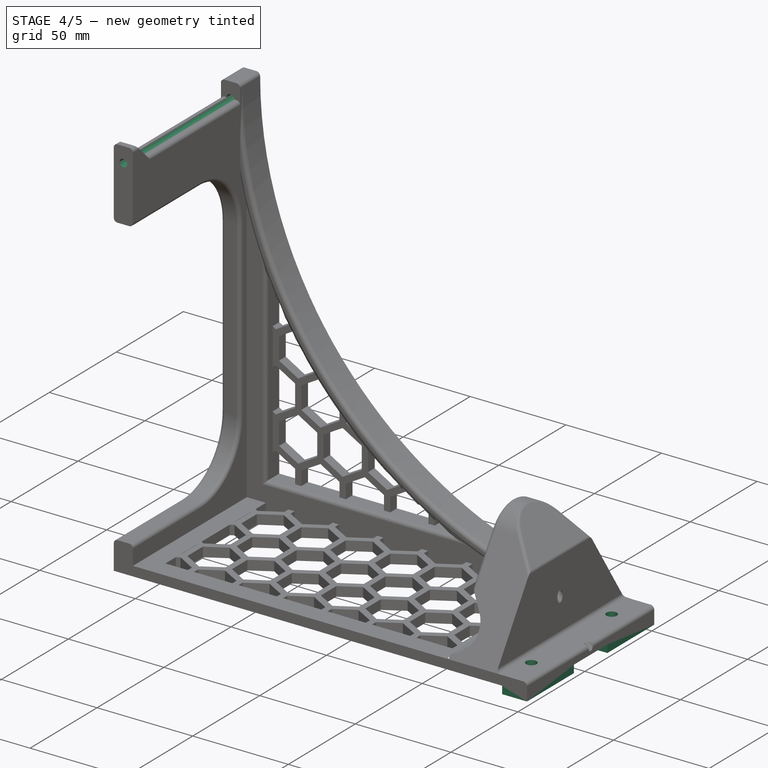
[diagram: stage 4 of 5 — iso view after this stage's code; geometry added in this stage tinted green]
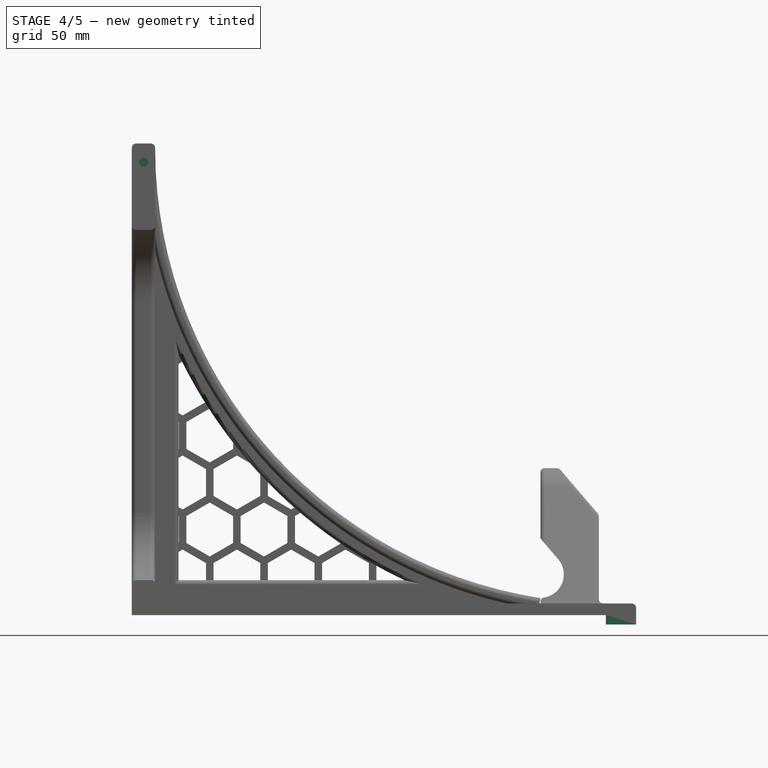
[diagram: stage 4 of 5 — front view after this stage's code; geometry added in this stage tinted green]
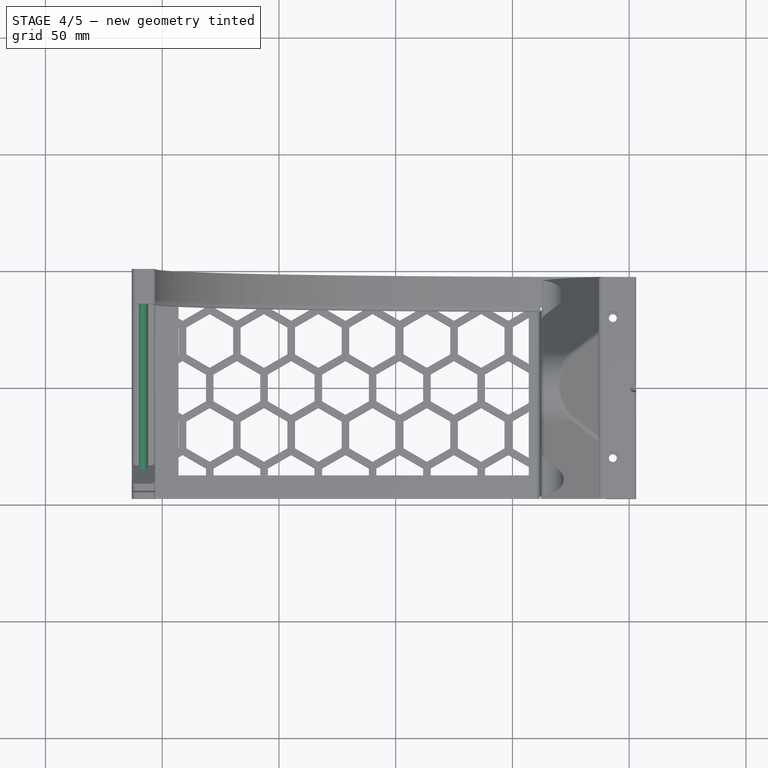
[diagram: stage 4 of 5 — top view after this stage's code; geometry added in this stage tinted green]
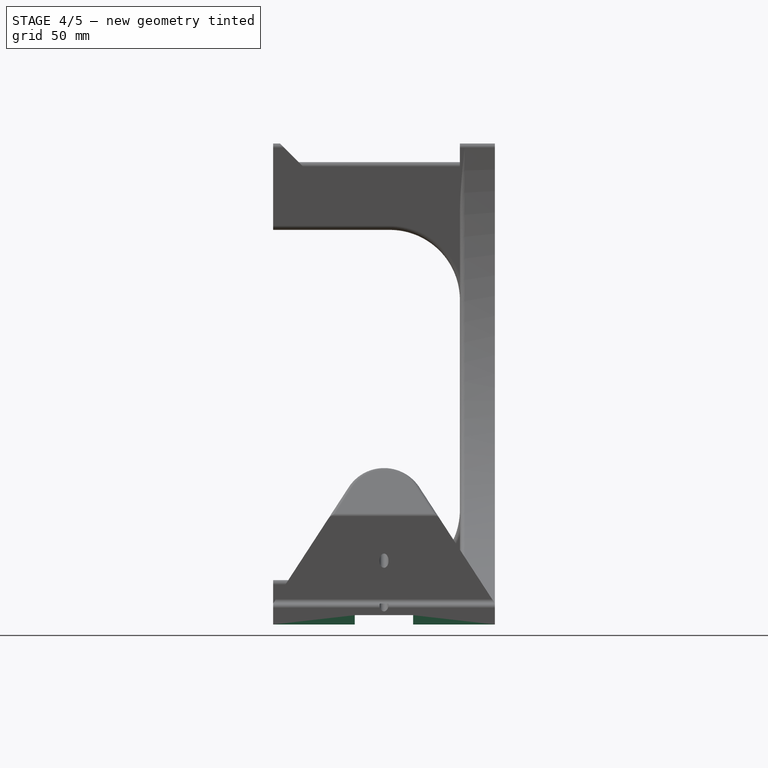
[diagram: stage 4 of 5 — right view after this stage's code; geometry added in this stage tinted green]
FEATURE [Sketcher::SketchObject] Sketch013  label="Sketch Screw Pads"
  ArcFitTolerance = 1e-06
  AttachmentSupport = -> [XY_Plane]
  FullyConstrained = true
  MakeInternals = false
  MapMode = 5
  expr: Constraints[21] = Sketch.Constraints.BaseLength / 2
  expr: Constraints[22] = Sketch.Constraints.BaseWidth
  sketch-geometry (8):
    g0: LineSegment StartX=90 StartY=47.5 StartZ=0 EndX=90 EndY=12.5 EndZ=0
    g1: LineSegment StartX=90 StartY=12.5 StartZ=0 EndX=103 EndY=12.5 EndZ=0
    g2: LineSegment StartX=103 StartY=12.5 StartZ=0 EndX=103 EndY=47.5 EndZ=0
    g3: LineSegment StartX=103 StartY=47.5 StartZ=0 EndX=90 EndY=47.5 EndZ=0
    g4: LineSegment StartX=90 StartY=-12.5 StartZ=0 EndX=90 EndY=-47.5 EndZ=0
    g5: LineSegment StartX=90 StartY=-47.5 StartZ=0 EndX=103 EndY=-47.5 EndZ=0
    g6: LineSegment StartX=103 StartY=-47.5 StartZ=0 EndX=103 EndY=-12.5 EndZ=0
    g7: LineSegment StartX=103 StartY=-12.5 StartZ=0 EndX=90 EndY=-12.5 EndZ=0
  constraints (23):
    c: Coincident(g0,g1)
    c: Coincident(g1,g2)
    c: Coincident(g2,g3)
    c: Coincident(g3,g0)
    c: Vertical(g0)
    c: Vertical(g2)
    c: Horizontal(g1)
    c: Horizontal(g3)
    c: Coincident(g4,g5)
    c: Coincident(g5,g6)
    c: Coincident(g6,g7)
    c: Coincident(g7,g4)
    c: Vertical(g4)
    c: Vertical(g6)
    c: Horizontal(g5)
    c: Horizontal(g7)
    c: Equal(g2,g6)
    c: Equal(g3,g7)
    c: Distance(g3,g3) = 13
    c: DistanceY(g2,g2) = 35
    c: Symmetric(g6,g1,g-1)
    c: DistanceX(g-1,g5) = 103
    c: DistanceY(g5,g2) = 95
FEATURE [PartDesign::Pad] Pad006  label="Pad Screw Pads"
  BaseFeature = -> SubtractivePipe
  Direction = (0,0,1)
  Length = 4
  Length2 = 10
  Profile = -> Sketch013
  ReferenceAxis = -> Sketch013 [N_Axis]
  Refine = true
  Reversed = true
  Suppressed = false
  Type = 0
FEATURE [Sketcher::SketchObject] Sketch014  label="Sketch Screw Holes"
  ArcFitTolerance = 1e-06
  AttachmentSupport = -> [XY_Plane]
  FullyConstrained = true
  MakeInternals = false
  MapMode = 5
  expr: Constraints[2] = Sketch.Constraints.BaseLength / 2 - 10 mm
  expr: Constraints[4] = Sketch.Constraints.BaseWidth - 35 mm
  sketch-geometry (2):
    g0: Circle CenterX=93 CenterY=30 CenterZ=0 NormalX=0 NormalY=0 NormalZ=1 AngleXU=0 Radius=1.7
    g1: Circle CenterX=93 CenterY=-30 CenterZ=0 NormalX=0 NormalY=0 NormalZ=1 AngleXU=0 Radius=1.7
  constraints (5):
    c: Diameter(g0) = 3.4
    c: Symmetric(g0,g1,g-1)
    c: Distance(g1,g-2) = 93
    c: Equal(g1,g0)
    c: DistanceY(g1,g0) = 60
FEATURE [PartDesign::Pocket] Pocket003  label="Pocket Screw Holes"
  BaseFeature = -> Pad006
  Direction = (0,0,-1)
  Length = 10
  Length2 = 5
  Midplane = true
  Profile = -> Sketch014
  ReferenceAxis = -> Sketch014 [N_Axis]
  Refine = true
  Suppressed = false
  Type = 0
FEATURE [Sketcher::SketchObject] Sketch015  label="Sketch Screw Head Recesses"
  ArcFitTolerance = 1e-06
  AttachmentSupport = -> [XY_Plane]
  FullyConstrained = true
  MakeInternals = false
  MapMode = 5
  expr: Constraints[3] = Sketch.Constraints.BaseLength / 2 - 10 mm
  expr: Constraints[4] = Sketch.Constraints.BaseWidth - 35 mm
  sketch-geometry (2):
    g0: Circle CenterX=93 CenterY=30 CenterZ=0 NormalX=0 NormalY=0 NormalZ=1 AngleXU=0 Radius=2.7
    g1: Circle CenterX=93 CenterY=-30 CenterZ=0 NormalX=0 NormalY=0 NormalZ=1 AngleXU=0 Radius=2.7
  constraints (5):
    c: Diameter(g0) = 5.4
    c: Equal(g1,g0)
    c: Symmetric(g0,g1,g-1)
    c: Distance(g1,g-2) = 93
    c: DistanceY(g1,g0) = 60
FEATURE [PartDesign::Pocket] Pocket004  label="Pocket Screw Head Recesses"
  BaseFeature = -> Pocket003
  Direction = (0,0,-1)
  Length = 5
  Length2 = 5
  Profile = -> Sketch015
  ReferenceAxis = -> Sketch015 [N_Axis]
  Refine = true
  Reversed = true
  Suppressed = false
  Type = 0
FEATURE [Sketcher::SketchObject] Sketch016  label="Sketch Spool Arm PTFE Hole"
  ArcFitTolerance = 1e-06
  AttachmentOffset = pos=(0,0,47.5) rot=(0,0,1;0rad)
  AttachmentSupport = -> [XZ_Plane]
  FullyConstrained = true
  MakeInternals = false
  MapMode = 5
  Placement = pos=(0,-47.5,1.05e-14) rot=(1,0,0;1.5708rad)
  expr: .AttachmentOffset.Base.z = Sketch.Constraints.BaseWidth / 2
  expr: Constraints[1] = Sketch.Constraints.BaseLength / 2 + 5 mm
  sketch-geometry (1):
    g0: Circle CenterX=-108 CenterY=194 CenterZ=0 NormalX=0 NormalY=0 NormalZ=1 AngleXU=0 Radius=1.975
  constraints (3):
    c: Diameter(g0) = 3.95
    c: Distance(g0,g-2) = 108
    c: Distance(g0,g-1) = 194
FEATURE [PartDesign::Pocket] Pocket005  label="Pocket Spool Arm PTFE Hole"
  BaseFeature = -> Pocket004
  Direction = (0,1,-2e-16)
  Length = 90
  Length2 = 5
  Profile = -> Sketch016
  ReferenceAxis = -> Sketch016 [N_Axis]
  Refine = true
  Suppressed = false
  Type = 0
  expr: Length = Sketch.Constraints.BaseWidth - 5 mm
FEATURE [PartDesign::Fillet] Fillet  label="Fillet Edges"
  Base = -> Pocket005 [Edge285,Edge9,Edge15,Edge298,Edge17,Edge851,Edge310,Edge19,Edge404,Edge394,Edge846,Edge980,Edge407,Edge414,Edge109,Edge984,Edge409,Edge983,Edge848,Edge399,Edge396,Edge81,Edge80,Edge79]
  BaseFeature = -> Pocket005
  Radius = 1.9
  Refine = true
  SupportTransform = false
  Suppressed = false
  UseAllEdges = false
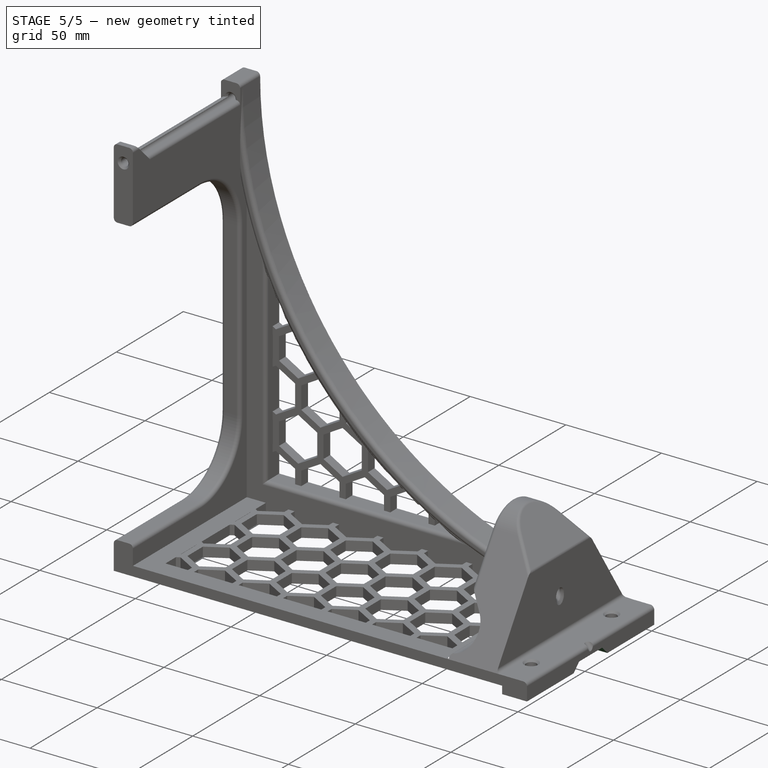
[diagram: stage 5 of 5 — iso view after this stage's code; geometry added in this stage tinted green]
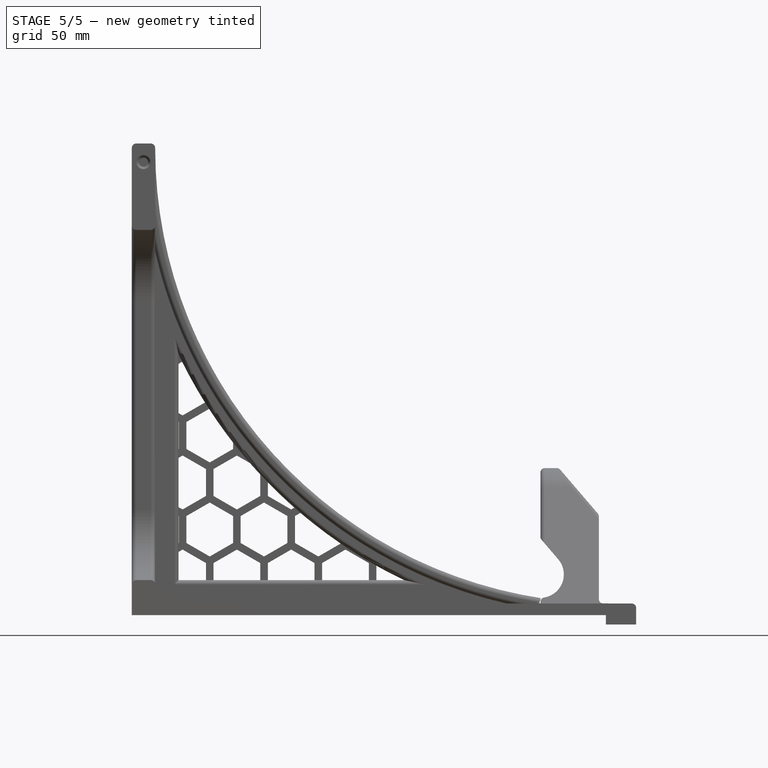
[diagram: stage 5 of 5 — front view after this stage's code; geometry added in this stage tinted green]
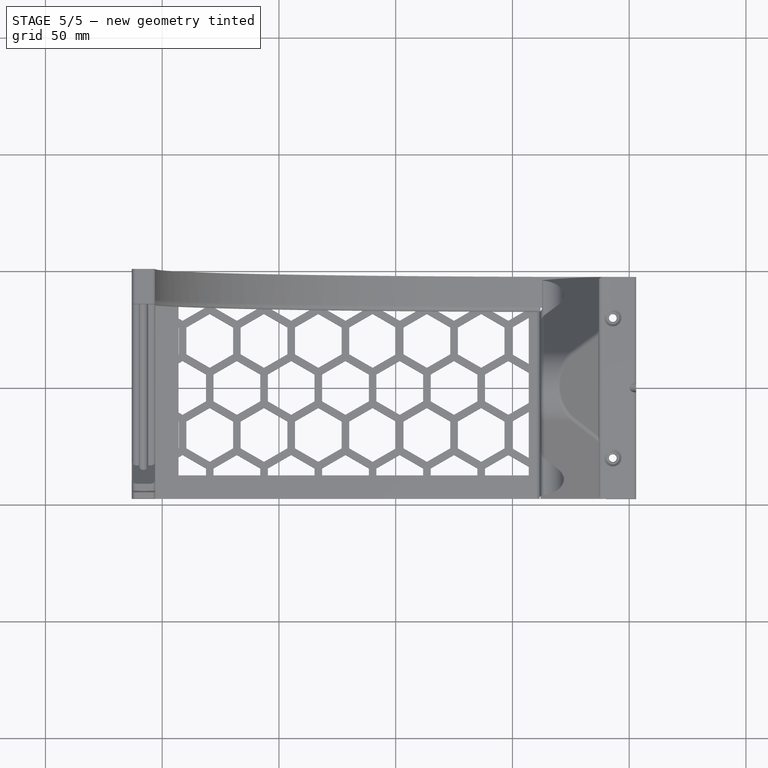
[diagram: stage 5 of 5 — top view after this stage's code; geometry added in this stage tinted green]
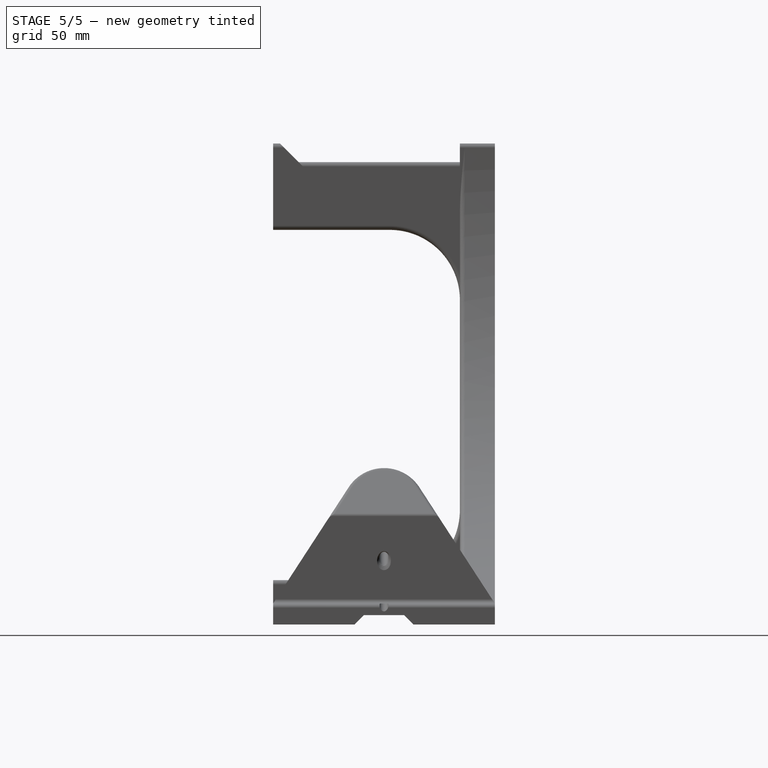
[diagram: stage 5 of 5 — right view after this stage's code; geometry added in this stage tinted green]
FEATURE [PartDesign::Chamfer] Chamfer  label="Chamfer PTFE Holes"
  Angle = 45
  Base = -> Fillet [Edge287,Edge1077,Edge1051,Edge426,Edge427,Edge417]
  BaseFeature = -> Fillet
  ChamferType = 0
  FlipDirection = false
  Refine = true
  Size = 1
  Size2 = 1
  SupportTransform = false
  Suppressed = false
  UseAllEdges = false
FEATURE [PartDesign::Fillet] Fillet001  label="Fillet Screw Holes"
  Base = -> Chamfer [Edge1073,Edge1081]
  BaseFeature = -> Chamfer
  Radius = 0.5
  Refine = true
  SupportTransform = false
  Suppressed = false
  UseAllEdges = false
FEATURE [Sketcher::SketchObject] Sketch018  label="Sketch Voron Logo"
  ArcFitTolerance = 1e-06
  AttachmentSupport = -> [Chamfer]
  FullyConstrained = true
  MakeInternals = false
  MapMode = 5
  Placement = pos=(-113,0,0) rot=(0.57735,-0.57735,-0.57735;2.0944rad)
  sketch-geometry (23):
    g0: LineSegment StartX=10 StartY=173.726 StartZ=0 EndX=10 EndY=185.274 EndZ=0
    g1: LineSegment StartX=10 StartY=185.274 StartZ=0 EndX=-1e-16 EndY=191.047 EndZ=0
    g2: LineSegment StartX=-1e-16 StartY=191.047 StartZ=0 EndX=-10 EndY=185.274 EndZ=0
    g3: LineSegment StartX=-10 StartY=185.274 StartZ=0 EndX=-10 EndY=173.726 EndZ=0
    g4: LineSegment StartX=-10 StartY=173.726 StartZ=0 EndX=1e-16 EndY=167.953 EndZ=0
    g5: LineSegment StartX=1e-16 StartY=167.953 StartZ=0 EndX=10 EndY=173.726 EndZ=0
    g6: Circle [constr] CenterX=0 CenterY=179.5 CenterZ=0 NormalX=0 NormalY=0 NormalZ=1 AngleXU=0 Radius=11.547
    g7: LineSegment StartX=-3.12591 StartY=186.5 StartZ=0 EndX=-7.96865 EndY=178.75 EndZ=0
    g8: LineSegment StartX=-7.96865 StartY=178.75 StartZ=0 EndX=-4.96865 EndY=178.75 EndZ=0
    g9: LineSegment StartX=-4.96865 StartY=178.75 StartZ=0 EndX=-0.125915 EndY=186.5 EndZ=0
    g10: LineSegment StartX=-0.125915 StartY=186.5 StartZ=0 EndX=-3.12591 EndY=186.5 EndZ=0
    g11: LineSegment StartX=2.87409 StartY=186.5 StartZ=0 EndX=5.87409 EndY=186.5 EndZ=0
    g12: LineSegment StartX=5.87409 StartY=186.5 StartZ=0 EndX=-2.87409 EndY=172.5 EndZ=0
    g13: LineSegment StartX=-2.87409 StartY=172.5 StartZ=0 EndX=-5.87409 EndY=172.5 EndZ=0
    g14: LineSegment StartX=-5.87409 StartY=172.5 StartZ=0 EndX=2.87409 EndY=186.5 EndZ=0
    g15: LineSegment StartX=0.125915 StartY=172.5 StartZ=0 EndX=3.12591 EndY=172.5 EndZ=0
    g16: LineSegment StartX=3.12591 StartY=172.5 StartZ=0 EndX=7.96865 EndY=180.25 EndZ=0
    g17: LineSegment StartX=7.96865 StartY=180.25 StartZ=0 EndX=4.96865 EndY=180.25 EndZ=0
    g18: LineSegment StartX=4.96865 StartY=180.25 StartZ=0 EndX=0.125915 EndY=172.5 EndZ=0
    g19: LineSegment [constr] StartX=-5.87409 StartY=172.5 StartZ=0 EndX=-6.37448 EndY=171.633 EndZ=0
    g20: LineSegment [constr] StartX=5.87409 StartY=186.5 StartZ=0 EndX=6.37448 EndY=187.367 EndZ=0
    g21: LineSegment [constr] StartX=3.12591 StartY=172.5 StartZ=0 EndX=4.31335 EndY=170.443 EndZ=0
    g22: LineSegment [constr] StartX=-3.12591 StartY=186.5 StartZ=0 EndX=-4.31335 EndY=188.557 EndZ=0
  constraints (65):
    c: Coincident(g0,g1)
    c: Coincident(g1,g2)
    c: Coincident(g2,g3)
    c: Coincident(g3,g4)
    c: Coincident(g4,g5)
    c: Coincident(g5,g0)
    c: Equal(g0, g1-g5) x5
    c: PointOnObject(g0,g6)
    c: PointOnObject(g1,g6)
    c: PointOnObject(g2,g6)
    c: PointOnObject(g3,g6)
    c: PointOnObject(g4,g6)
    c: PointOnObject(g5,g6)
    c: Vertical(g0)
    c: DistanceX(g2,g0) = 20
    c: PointOnObject(g6,g-2)
    c: Distance(g6,g-1) = 179.5
    c: Coincident(g7,g8)
    c: Horizontal(g8)
    c: Coincident(g8,g9)
    c: Coincident(g9,g10)
    c: Coincident(g10,g7)
    c: Horizontal(g11)
    c: Coincident(g11,g12)
    c: Coincident(g12,g13)
    c: Coincident(g13,g14)
    c: Coincident(g14,g11)
    c: Horizontal(g15)
    c: Coincident(g15,g16)
    c: Coincident(g16,g17)
    c: Horizontal(g17)
    c: Coincident(g17,g18)
    c: Coincident(g18,g15)
    c: Horizontal(g10)
    c: Horizontal(g13)
    c: Equal(g10,g8)
    c: Equal(g8,g13)
    c: Equal(g13,g11)
    c: Equal(g11,g17)
    c: Equal(g17,g15)
    c: DistanceX(g10,g10) = 3
    c: Angle(g9,g8) = 2.1293
    c: Parallel(g9,g14)
    c: Parallel(g14,g18)
    c: Horizontal(g12,g15)
    c: Horizontal(g9,g11)
    c: Equal(g16,g7)
    c: DistanceY(g15,g16) = 7.75
    c: DistanceY(g12,g11) = 14
    c: Distance(g9,g11) = 3
    c: DistanceX(g12,g15) = 3
    c: Coincident(g19,g13)
    c: PointOnObject(g19,g4)
    c: Perpendicular(g4,g19)
    c: Coincident(g20,g11)
    c: PointOnObject(g20,g1)
    c: Perpendicular(g1,g20)
    c: Equal(g20,g19)
    c: Coincident(g21,g15)
    c: PointOnObject(g21,g5)
    c: Coincident(g22,g7)
    c: PointOnObject(g22,g2)
    c: Perpendicular(g2,g22)
    c: Perpendicular(g5,g21)
    c: Equal(g21,g22)
FEATURE [PartDesign::Pocket] Pocket006  label="Pocket Voron Logo"
  BaseFeature = -> Fillet001
  Direction = (1,0,0)
  Length = 0.6
  Length2 = 5
  Profile = -> Sketch018
  ReferenceAxis = -> Sketch018 [N_Axis]
  Refine = true
  Suppressed = false
  Type = 0
FEATURE [PartDesign::Chamfer] Chamfer001  label="Chamfer Screw Pads"
  Angle = 45
  Base = -> Pocket006 [Edge15,Edge38]
  BaseFeature = -> Pocket006
  ChamferType = 0
  FlipDirection = false
  Refine = true
  Size = 3.9
  Size2 = 1
  SupportTransform = false
  Suppressed = false
  UseAllEdges = false
FEATURE [PartDesign::Body] Body
  AllowCompound = false
  Group = -> [Sketch,Pad,Sketch001,Pocket,LinearPattern,Sketch002,Pad001,Sketch003,Sketch004,Pad003,Sketch005,Pocket001,LinearPattern001,Sketch006,Pad004,Pad002,Sketch007,Sketch008,AdditivePipe,Sketch009,Pad005,Sketch010,Pocket002,Sketch011,DatumPlane,Sketch012,SubtractivePipe,Sketch013,Pad006,Sketch014,Pocket003,Sketch015,Pocket004,Sketch016,Pocket005,Fillet,Chamfer,Fillet001,Sketch018,Pocket006,Chamfer001]
  Origin = -> Origin
  Tip = -> Chamfer001
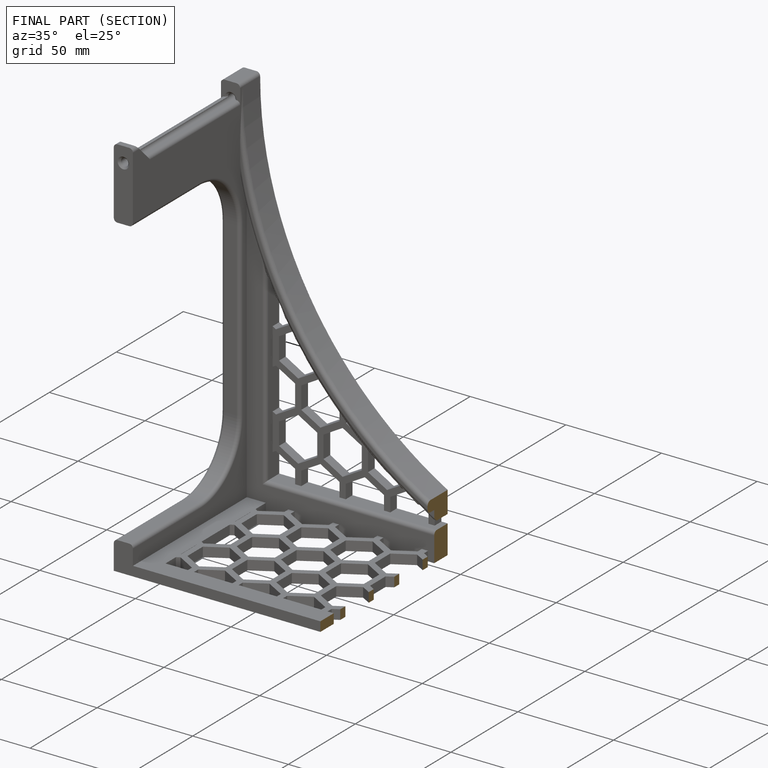
[diagram: finished part — half-section view (interior)]
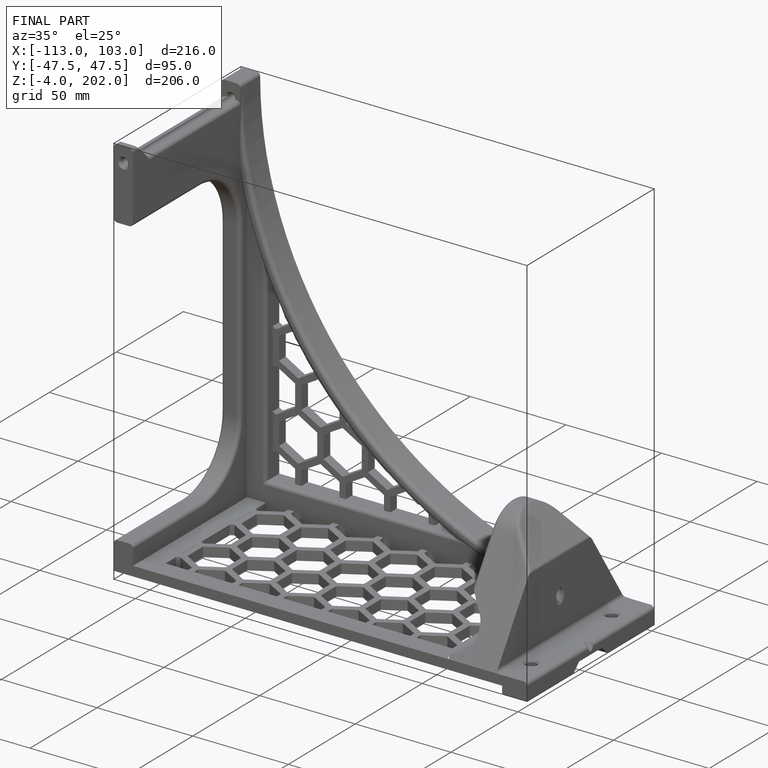
[diagram: finished part — iso view with bounding-box wireframe]
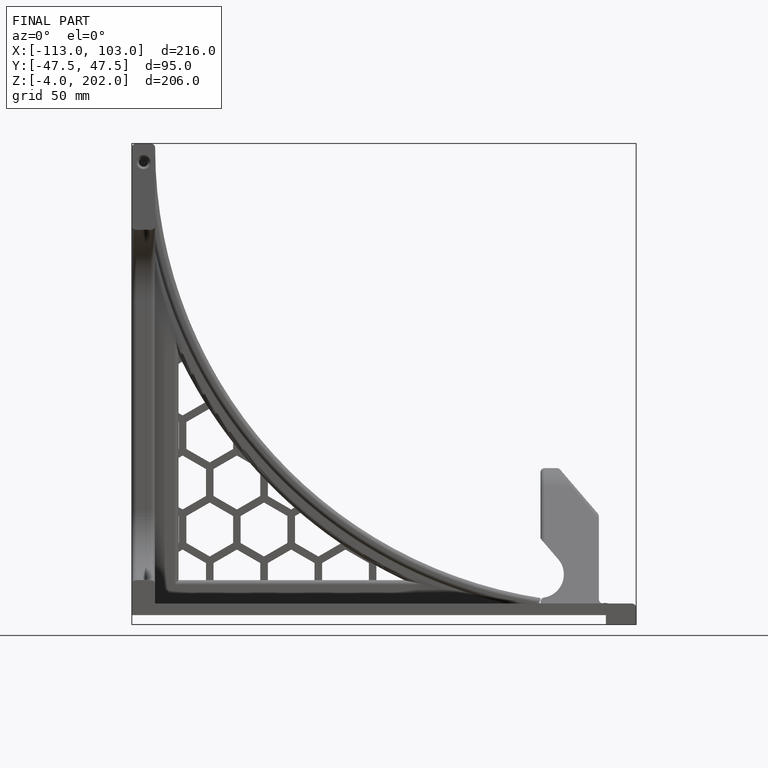
[diagram: finished part — front view with bounding-box wireframe]
